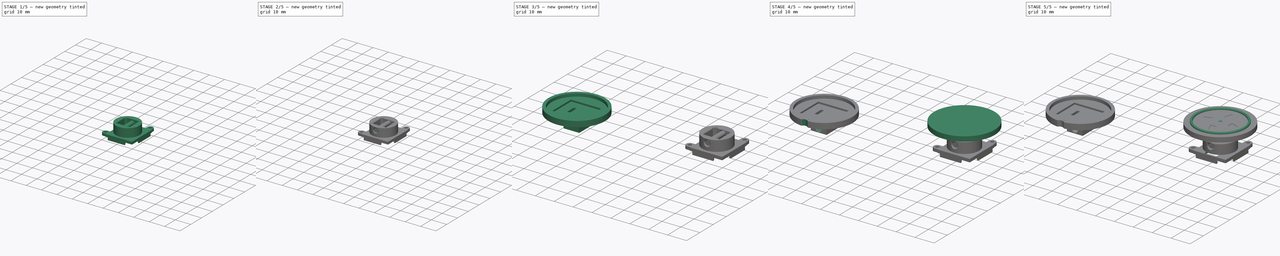
[diagram: build sequence overview — one tinted view per stage of 5, left to right]
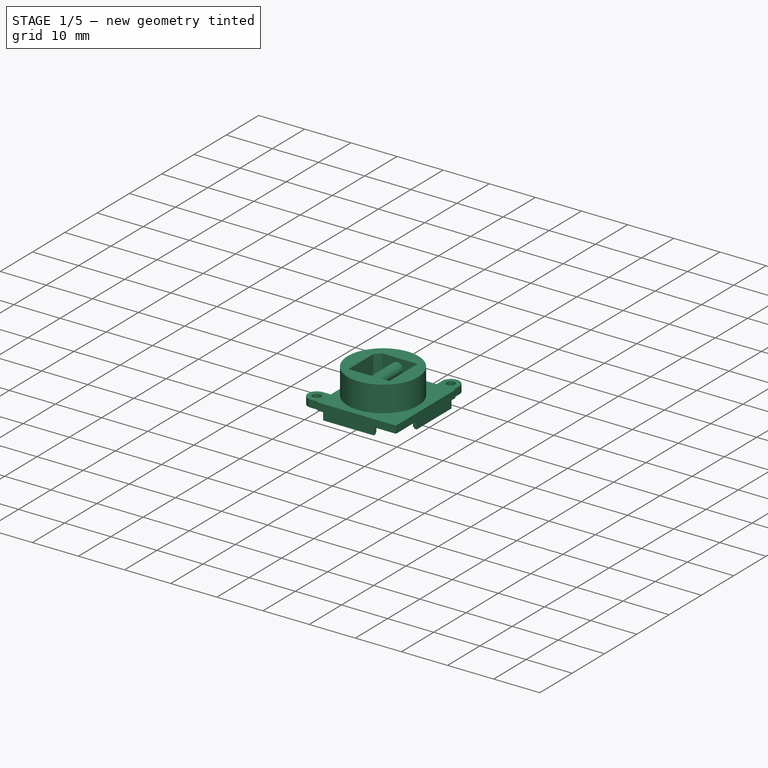
[diagram: stage 1 of 5 — iso view after this stage's code; geometry added in this stage tinted green]
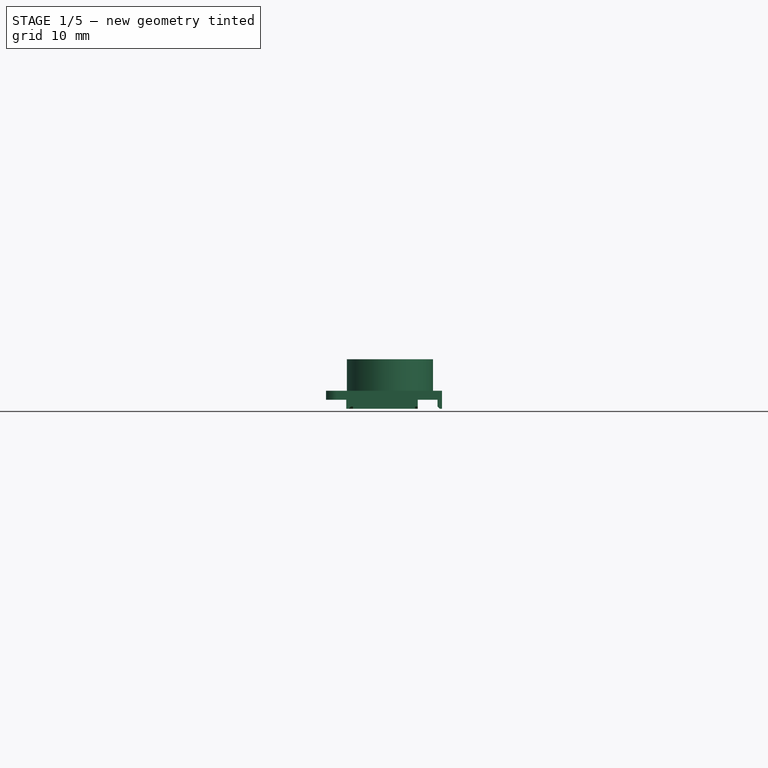
[diagram: stage 1 of 5 — front view after this stage's code; geometry added in this stage tinted green]
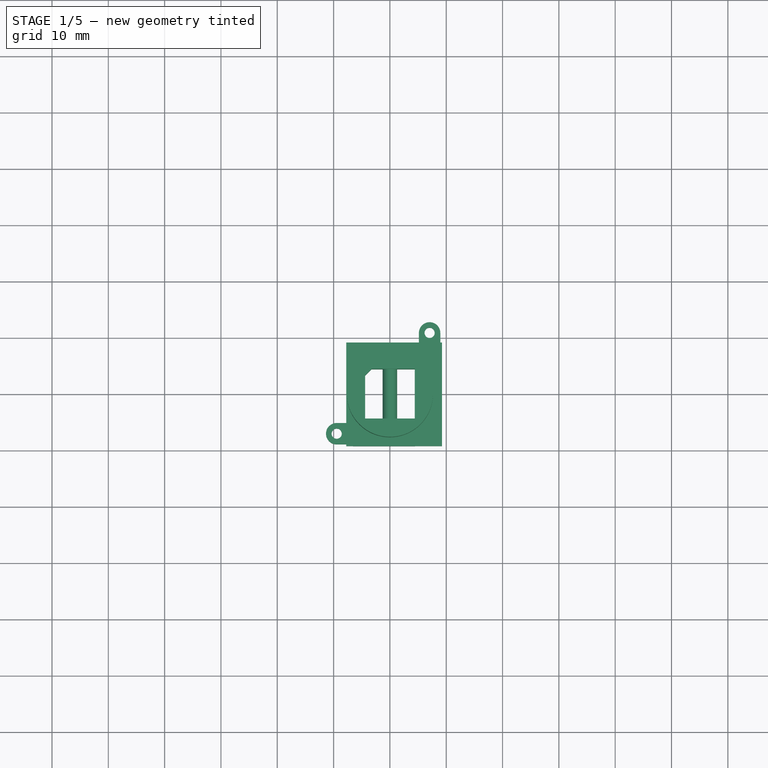
[diagram: stage 1 of 5 — top view after this stage's code; geometry added in this stage tinted green]
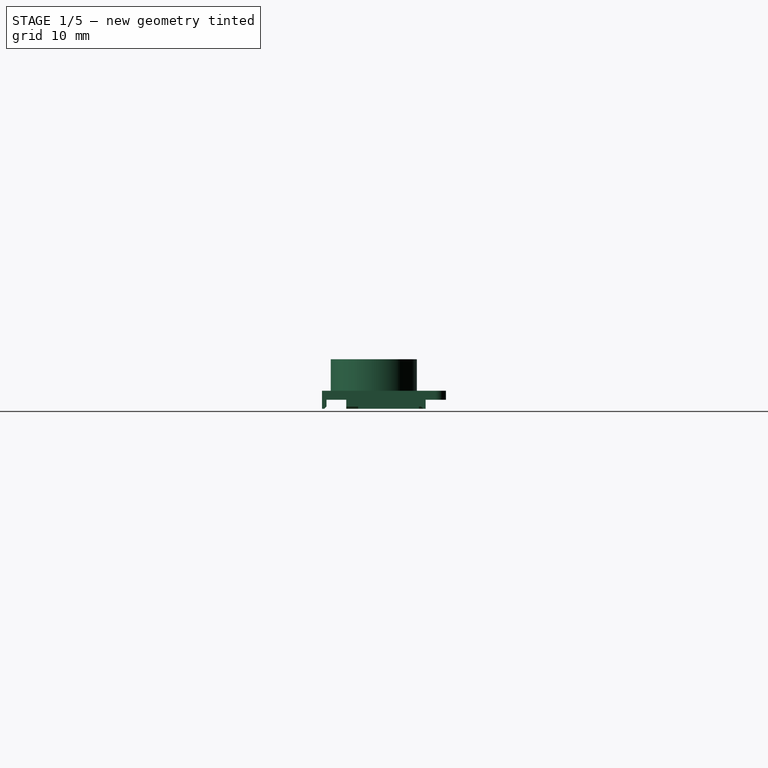
[diagram: stage 1 of 5 — right view after this stage's code; geometry added in this stage tinted green]
FCSTD DOCUMENT  (FreeCAD 0.18R4 (GitTag))
Label: Freude
License: All rights reserved
LicenseURL: http://en.wikipedia.org/wiki/All_rights_reserved
objects: Part::Feature×30, Sketcher::SketchObject×24, PartDesign::Pocket×12, App::Part×11, PartDesign::Pad×7, PartDesign::Chamfer×6, PartDesign::Body×4, PartDesign::Fillet×3, PartDesign::CoordinateSystem×2, Part::FeaturePython×1, PartDesign::ShapeBinder×1, PartDesign::PolarPattern×1, PartDesign::Revolution×1
note: 112 computed .brp shape members not serialized (recipe doc carries the construction recipe); baked Part::Feature solids carry a one-line shape summary decoded from their .brp

FEATURE [Part::FeaturePython] Point  # WARN: FeaturePython — macro-defined, semantics opaque (R4)
  X = 0
  Y = 0
  Z = 0
FEATURE [Sketcher::SketchObject] Sketch004
  AttachmentOffset = pos=(0,0,-11.4) rot=(0,0,1;0rad)
  MapMode = 5
  Placement = pos=(0,0,-11.4) rot=(0,0,1;0rad)
  Support = -> [XY_Plane010]
  sketch-geometry (42):
    g0: LineSegment [constr] StartX=-6.75 StartY=8.2 StartZ=0 EndX=4.85 EndY=8.2 EndZ=0
    g1: LineSegment [constr] StartX=8.25 StartY=8.2 StartZ=0 EndX=8.25 EndY=-8.2 EndZ=0
    g2: LineSegment [constr] StartX=8.25 StartY=-8.2 StartZ=0 EndX=-6.75 EndY=-8.2 EndZ=0
    g3: LineSegment [constr] StartX=-6.75 StartY=-8.2 StartZ=0 EndX=-6.75 EndY=-7.5 EndZ=0
    g4: LineSegment [constr] StartX=9.25 StartY=8.2 StartZ=0 EndX=8.25 EndY=8.2 EndZ=0
    g5: LineSegment [constr] StartX=-6.75 StartY=-6.5 StartZ=0 EndX=-6.75 EndY=8.2 EndZ=0
    g6: LineSegment [constr] StartX=-6.75 StartY=9.2 StartZ=0 EndX=-6.75 EndY=8.2 EndZ=0
    g7: LineSegment [constr] StartX=-7.75 StartY=8.2 StartZ=0 EndX=-6.75 EndY=8.2 EndZ=0
    g8: LineSegment [constr] StartX=-7.75 StartY=-8.2 StartZ=0 EndX=-6.75 EndY=-8.2 EndZ=0
    g9: LineSegment [constr] StartX=-6.75 StartY=-9.2 StartZ=0 EndX=-6.75 EndY=-8.2 EndZ=0
    g10: LineSegment [constr] StartX=8.25 StartY=-9.2 StartZ=0 EndX=8.25 EndY=-8.2 EndZ=0
    g11: LineSegment [constr] StartX=9.25 StartY=-8.2 StartZ=0 EndX=8.25 EndY=-8.2 EndZ=0
    g12: ArcOfCircle CenterX=7.05 CenterY=10.9 CenterZ=0 NormalX=0 NormalY=0 NormalZ=1 AngleXU=0 Radius=1.9 StartAngle=-1.8e-15 EndAngle=3.14159
    g13: LineSegment StartX=-7.75 StartY=9.2 StartZ=0 EndX=5.15 EndY=9.2 EndZ=0
    g14: LineSegment StartX=-7.75 StartY=-5.1 StartZ=0 EndX=-7.75 EndY=9.2 EndZ=0
    g15: LineSegment StartX=5.15 StartY=9.2 StartZ=0 EndX=5.15 EndY=10.9 EndZ=0
    g16: LineSegment StartX=9.25 StartY=9.2 StartZ=0 EndX=9.25 EndY=-9.2 EndZ=0
    g17: LineSegment StartX=9.25 StartY=-9.2 StartZ=0 EndX=-7.75 EndY=-9.2 EndZ=0
    g18: LineSegment [constr] StartX=8.25 StartY=8.2 StartZ=0 EndX=8.25 EndY=9.2 EndZ=0
    g19: LineSegment StartX=8.95 StartY=10.9 StartZ=0 EndX=8.95 EndY=9.2 EndZ=0
    g20: LineSegment StartX=8.95 StartY=9.2 StartZ=0 EndX=9.25 EndY=9.2 EndZ=0
    g21: ArcOfCircle CenterX=-9.45 CenterY=-7 CenterZ=0 NormalX=0 NormalY=0 NormalZ=1 AngleXU=0 Radius=1.9 StartAngle=1.5708 EndAngle=4.71239
    g22: LineSegment StartX=-9.45 StartY=-8.9 StartZ=0 EndX=-7.75 EndY=-8.9 EndZ=0
    g23: LineSegment StartX=-7.75 StartY=-8.9 StartZ=0 EndX=-7.75 EndY=-9.2 EndZ=0
    g24: LineSegment StartX=-9.45 StartY=-5.1 StartZ=0 EndX=-7.75 EndY=-5.1 EndZ=0
    g25: LineSegment [constr] StartX=8.25 StartY=9.2 StartZ=0 EndX=8.95 EndY=9.2 EndZ=0
    g26: LineSegment [constr] StartX=-7.75 StartY=-8.2 StartZ=0 EndX=-7.75 EndY=-8.9 EndZ=0
    g27: Circle CenterX=-9.45 CenterY=-7 CenterZ=0 NormalX=0 NormalY=0 NormalZ=1 AngleXU=0 Radius=0.9
    g28: LineSegment [constr] StartX=-6.75 StartY=-6.5 StartZ=0 EndX=-6.75 EndY=-7.5 EndZ=0
    g29: GeomPoint X=-6.75 Y=-7 Z=0
    g30: LineSegment [constr] StartX=-9.45 StartY=-7 StartZ=0 EndX=-6.75 EndY=-7 EndZ=0
    g31: LineSegment [constr] StartX=4.85 StartY=8.2 StartZ=0 EndX=9.25 EndY=8.2 EndZ=0
    g32: GeomPoint X=7.05 Y=8.2 Z=0
    g33: LineSegment [constr] StartX=7.05 StartY=8.2 StartZ=0 EndX=7.05 EndY=10.9 EndZ=0
    g34: Circle CenterX=7.05 CenterY=10.9 CenterZ=0 NormalX=0 NormalY=0 NormalZ=1 AngleXU=0 Radius=0.9
    g35: LineSegment [constr] StartX=5.15 StartY=9.2 StartZ=0 EndX=8.95 EndY=9.2 EndZ=0
    g36: LineSegment [constr] StartX=5.15 StartY=10.9 StartZ=0 EndX=8.95 EndY=10.9 EndZ=0
    g37: LineSegment [constr] StartX=5.15 StartY=10.9 StartZ=0 EndX=5.15 EndY=12.8 EndZ=0
    g38: LineSegment [constr] StartX=5.15 StartY=12.8 StartZ=0 EndX=8.95 EndY=12.8 EndZ=0
    g39: LineSegment [constr] StartX=-9.45 StartY=-5.1 StartZ=0 EndX=-9.45 EndY=-8.9 EndZ=0
    g40: LineSegment [constr] StartX=-9.45 StartY=-8.9 StartZ=0 EndX=-11.35 EndY=-8.9 EndZ=0
    g41: LineSegment [constr] StartX=-11.35 StartY=-5.1 StartZ=0 EndX=-11.35 EndY=-8.9 EndZ=0
  constraints (113):
    c: Coincident(g4,g1)
    c: Coincident(g1,g2)
    c: Coincident(g2,g3)
    c: Coincident(g5,g0)
    c: Horizontal(g0)
    c: Horizontal(g2)
    c: Vertical(g1)
    c: Vertical(g3)
    c: Tangent(g0,g4)
    c: Tangent(g3,g5)
    c: Coincident(g0,g6)
    c: Vertical(g6)
    c: Coincident(g7,g0)
    c: Horizontal(g7)
    c: Coincident(g8,g2)
    c: Horizontal(g8)
    c: Coincident(g9,g2)
    c: Vertical(g9)
    c: Coincident(g10,g11)
    c: Coincident(g10,g1)
    c: Vertical(g10)
    c: Horizontal(g11)
    c: Equal(g11,g10)
    c: Horizontal(g13)
    c: Coincident(g13,g14)
    c: Perpendicular(g14,g13)
    c: PointOnObject(g7,g14)
    c: PointOnObject(g6,g13)
    c: Vertical(g15)
    c: Coincident(g15,g12)
    c: Coincident(g15,g13)
    c: Vertical(g16)
    c: PointOnObject(g11,g16)
    c: Horizontal(g17)
    c: PointOnObject(g10,g17)
    c: Coincident(g16,g17)
    c: Coincident(g18,g1)
    c: Vertical(g18)
    c: Vertical(g19)
    c: Coincident(g19,g20)
    c: Coincident(g20,g16)
    c: Horizontal(g22)
    c: Coincident(g22,g23)
    c: Coincident(g23,g17)
    c: Horizontal(g24)
    c: Coincident(g14,g24)
    c: Coincident(g25,g18)
    c: Coincident(g19,g12)
    c: Coincident(g24,g21)
    c: Coincident(g22,g21)
    c: Vertical(g23)
    c: Coincident(g26,g8)
    c: Tangent(g23,g26)
    c: Radius(g27) = 0.9
    c: Coincident(g28,g3)
    c: Symmetric(g28,g28,g29)
    c: Coincident(g30,g29)
    c: Horizontal(g30)
    c: Coincident(g30,g27)
    c: Coincident(g31,g0)
    c: Symmetric(g31,g31,g32)
    c: Coincident(g33,g32)
    c: Vertical(g33)
    c: Equal(g33,g30)
    c: Coincident(g34,g33)
    c: Equal(g34,g27)
    c: DistanceY(g22,g14) = 3.8
    c: Coincident(g21,g27)
    c: Radius(g21) = 1.9
    c: Coincident(g35,g19)
    c: Coincident(g35,g13)
    c: Horizontal(g35)
    c: Coincident(g12,g33)
    c: Coincident(g36,g12)
    c: Coincident(g36,g12)
    c: Horizontal(g36)
    c: Coincident(g31,g4)
    c: PointOnObject(g12,g36)
    c: Equal(g7,g6)
    c: Equal(g9,g8)
    c: Equal(g6,g8)
    c: Coincident(g25,g19)
    c: PointOnObject(g18,g35)
    c: PointOnObject(g4,g16)
    c: Horizontal(g20)
    c: DistanceX(g13) = -7.75
    c: DistanceY(g13) = 9.2
    c: DistanceX(g16) = 9.25
    c: DistanceY(g16) = -9.2
    c: DistanceX(g20,g20) = 0.3
    c: DistanceX(g36,g36) = 3.8
    c: Coincident(g37,g12)
    c: Vertical(g37)
    c: Horizontal(g38)
    c: Coincident(g38,g37)
    c: Equal(g38,g36)
    c: Tangent(g38,g12)
    c: DistanceY(g13,g37) = 3.6
    c: PointOnObject(g9,g17)
    c: Distance(g7) = 1
    c: Coincident(g39,g21)
    c: PointOnObject(g21,g39)
    c: Coincident(g39,g21)
    c: Coincident(g40,g21)
    c: Perpendicular(g39,g40)
    c: Coincident(g41,g40)
    c: Vertical(g41)
    c: Equal(g41,g39)
    c: Tangent(g41,g21)
    c: Coincident(g28,g5)
    c: Equal(g23,g20)
    c: Coincident(g26,g22)
    c: Distance(g28) = 1
FEATURE [PartDesign::Pad] Pad  label="MainBody"
  Length = 3.2
  Length2 = 100
  Midplane = true
  Profile = -> Sketch004
  Type = 0
FEATURE [Sketcher::SketchObject] Sketch006
  AttachmentOffset = pos=(0,0,-11.4) rot=(0,0,1;0rad)
  MapMode = 5
  Placement = pos=(0,0,-11.4) rot=(0,0,1;0rad)
  Support = -> [XY_Plane010]
  sketch-geometry (60):
    g0: LineSegment [constr] StartX=-6.95 StartY=8.4 StartZ=0 EndX=8.45 EndY=8.4 EndZ=0
    g1: LineSegment StartX=8.45 StartY=8 StartZ=0 EndX=8.45 EndY=-2.8 EndZ=0
    g2: LineSegment [constr] StartX=-6.95 StartY=-8.4 StartZ=0 EndX=-6.95 EndY=8.4 EndZ=0
    g3: LineSegment [constr] StartX=-6.95 StartY=9.2 StartZ=0 EndX=-6.95 EndY=8.4 EndZ=0
    g4: LineSegment [constr] StartX=-7.75 StartY=8.4 StartZ=0 EndX=-6.95 EndY=8.4 EndZ=0
    g5: LineSegment [constr] StartX=-9.65 StartY=-8.9 StartZ=0 EndX=-9.65 EndY=-5.1 EndZ=0
    g6: LineSegment [constr] StartX=8.45 StartY=-9.2 StartZ=0 EndX=8.45 EndY=-8.4 EndZ=0
    g7: LineSegment [constr] StartX=9.25 StartY=-8.4 StartZ=0 EndX=8.45 EndY=-8.4 EndZ=0
    g8: ArcOfCircle CenterX=7.05 CenterY=11.1 CenterZ=0 NormalX=0 NormalY=0 NormalZ=1 AngleXU=0 Radius=1.9 StartAngle=1.1e-15 EndAngle=3.14159
    g9: LineSegment [constr] StartX=-7.75 StartY=9.2 StartZ=0 EndX=5.15 EndY=9.2 EndZ=0
    g10: LineSegment [constr] StartX=-7.75 StartY=-5.1 StartZ=0 EndX=-7.75 EndY=9.2 EndZ=0
    g11: LineSegment StartX=5.15 StartY=9.2 StartZ=0 EndX=5.15 EndY=11.1 EndZ=0
    g12: LineSegment [constr] StartX=9.25 StartY=9.2 StartZ=0 EndX=9.25 EndY=-9.2 EndZ=0
    g13: LineSegment [constr] StartX=9.25 StartY=-9.2 StartZ=0 EndX=-7.75 EndY=-9.2 EndZ=0
    g14: LineSegment StartX=8.95 StartY=11.1 StartZ=0 EndX=8.95 EndY=9.2 EndZ=0
    g15: LineSegment [constr] StartX=8.95 StartY=9.2 StartZ=0 EndX=9.25 EndY=9.2 EndZ=0
    g16: ArcOfCircle CenterX=-9.65 CenterY=-7 CenterZ=0 NormalX=0 NormalY=0 NormalZ=1 AngleXU=0 Radius=1.9 StartAngle=1.5708 EndAngle=4.71239
    g17: LineSegment StartX=-9.65 StartY=-8.9 StartZ=0 EndX=-7.75 EndY=-8.9 EndZ=0
    g18: LineSegment [constr] StartX=-7.75 StartY=-8.9 StartZ=0 EndX=-7.75 EndY=-9.2 EndZ=0
    g19: LineSegment StartX=-9.65 StartY=-5.1 StartZ=0 EndX=-7.75 EndY=-5.1 EndZ=0
    g20: Circle [constr] CenterX=-9.65 CenterY=-7 CenterZ=0 NormalX=0 NormalY=0 NormalZ=1 AngleXU=0 Radius=0.9
    g21: Circle [constr] CenterX=7.05 CenterY=11.1 CenterZ=0 NormalX=0 NormalY=0 NormalZ=1 AngleXU=0 Radius=0.9
    g22: LineSegment [constr] StartX=-7.75 StartY=-5.1 StartZ=0 EndX=-7.75 EndY=-8.9 EndZ=0
    g23: LineSegment [constr] StartX=-11.55 StartY=-5.1 StartZ=0 EndX=-11.55 EndY=-8.9 EndZ=0
    g24: LineSegment [constr] StartX=-11.55 StartY=-8.9 StartZ=0 EndX=-9.65 EndY=-8.9 EndZ=0
    g25: LineSegment [constr] StartX=5.15 StartY=11.1 StartZ=0 EndX=8.95 EndY=11.1 EndZ=0
    g26: LineSegment [constr] StartX=5.15 StartY=9.2 StartZ=0 EndX=8.95 EndY=9.2 EndZ=0
    g27: LineSegment [constr] StartX=5.15 StartY=13 StartZ=0 EndX=8.95 EndY=13 EndZ=0
    g28: LineSegment [constr] StartX=5.15 StartY=13 StartZ=0 EndX=5.15 EndY=11.1 EndZ=0
    g29: LineSegment StartX=-6.55 StartY=-8.4 StartZ=0 EndX=4.45 EndY=-8.4 EndZ=0
    g30: LineSegment [constr] StartX=8.45 StartY=8.4 StartZ=0 EndX=8.45 EndY=9.2 EndZ=0
    g31: LineSegment [constr] StartX=8.45 StartY=9.2 StartZ=0 EndX=8.95 EndY=9.2 EndZ=0
    g32: LineSegment [constr] StartX=5.15 StartY=9.2 StartZ=0 EndX=5.15 EndY=8.4 EndZ=0
    g33: LineSegment StartX=4.95 StartY=8.4 StartZ=0 EndX=-6.95 EndY=8.4 EndZ=0
    g34: LineSegment [constr] StartX=-7.75 StartY=-5.1 StartZ=0 EndX=-6.95 EndY=-5.1 EndZ=0
    g35: LineSegment [constr] StartX=-7.75 StartY=-8.4 StartZ=0 EndX=-6.95 EndY=-8.4 EndZ=0
    g36: LineSegment [constr] StartX=-7.75 StartY=-8.4 StartZ=0 EndX=-7.75 EndY=-8.9 EndZ=0
    g37: LineSegment StartX=-6.95 StartY=8.4 StartZ=0 EndX=-6.95 EndY=-4.9 EndZ=0
    g38: LineSegment [constr] StartX=-7.75 StartY=-8.9 StartZ=0 EndX=-6.55 EndY=-8.9 EndZ=0
    g39: LineSegment StartX=-6.55 StartY=-8.4 StartZ=0 EndX=-6.55 EndY=-8.9 EndZ=0
    g40: LineSegment [constr] StartX=-6.95 StartY=-8.4 StartZ=0 EndX=-6.55 EndY=-8.4 EndZ=0
    g41: LineSegment [constr] StartX=8.95 StartY=9.2 StartZ=0 EndX=8.95 EndY=8 EndZ=0
    g42: LineSegment StartX=8.95 StartY=8 StartZ=0 EndX=8.45 EndY=8 EndZ=0
    g43: LineSegment [constr] StartX=8.45 StartY=8.4 StartZ=0 EndX=8.45 EndY=8 EndZ=0
    g44: LineSegment StartX=4.45 StartY=-8.4 StartZ=0 EndX=4.45 EndY=-11 EndZ=0
    g45: LineSegment StartX=4.45 StartY=-11 StartZ=0 EndX=11.05 EndY=-11 EndZ=0
    g46: LineSegment StartX=11.05 StartY=-11 StartZ=0 EndX=11.05 EndY=-2.8 EndZ=0
    g47: LineSegment StartX=11.05 StartY=-2.8 StartZ=0 EndX=8.45 EndY=-2.8 EndZ=0
    g48: LineSegment [constr] StartX=4.45 StartY=-8.4 StartZ=0 EndX=8.45 EndY=-8.4 EndZ=0
    g49: LineSegment [constr] StartX=8.45 StartY=-2.8 StartZ=0 EndX=8.45 EndY=-8.4 EndZ=0
    g50: LineSegment StartX=-7.75 StartY=-4.9 StartZ=0 EndX=-7.75 EndY=-5.1 EndZ=0
    g51: LineSegment StartX=4.95 StartY=9.2 StartZ=0 EndX=4.95 EndY=8.4 EndZ=0
    g52: LineSegment StartX=4.95 StartY=9.2 StartZ=0 EndX=5.15 EndY=9.2 EndZ=0
    g53: LineSegment StartX=-7.75 StartY=-4.9 StartZ=0 EndX=-6.95 EndY=-4.9 EndZ=0
    g54: LineSegment StartX=8.95 StartY=8 StartZ=0 EndX=9.25 EndY=8 EndZ=0
    g55: LineSegment StartX=9.25 StartY=8 StartZ=0 EndX=9.25 EndY=9.2 EndZ=0
    g56: LineSegment StartX=8.95 StartY=9.2 StartZ=0 EndX=9.25 EndY=9.2 EndZ=0
    g57: LineSegment StartX=-6.55 StartY=-8.9 StartZ=0 EndX=-6.55 EndY=-9.2 EndZ=0
    g58: LineSegment StartX=-6.55 StartY=-9.2 StartZ=0 EndX=-7.75 EndY=-9.2 EndZ=0
    g59: LineSegment StartX=-7.75 StartY=-9.2 StartZ=0 EndX=-7.75 EndY=-8.9 EndZ=0
  constraints (165):
    c: Coincident(g2,g0)
    c: Vertical(g1)
    c: Coincident(g0,g3)
    c: Vertical(g3)
    c: Coincident(g4,g0)
    c: Horizontal(g4)
    c: Vertical(g5)
    c: Coincident(g6,g7)
    c: Vertical(g6)
    c: Horizontal(g7)
    c: Horizontal(g9)
    c: Coincident(g9,g10)
    c: Perpendicular(g10,g9)
    c: PointOnObject(g3,g9)
    c: Vertical(g11)
    c: Coincident(g11,g8)
    c: Coincident(g11,g9)
    c: Vertical(g12)
    c: PointOnObject(g7,g12)
    c: Horizontal(g13)
    c: PointOnObject(g6,g13)
    c: Coincident(g12,g13)
    c: Coincident(g14,g15)
    c: Coincident(g15,g12)
    c: Coincident(g16,g5)
    c: Horizontal(g17)
    c: Coincident(g17,g18)
    c: Coincident(g18,g13)
    c: Horizontal(g19)
    c: Coincident(g10,g19)
    c: Coincident(g14,g8)
    c: Coincident(g19,g16)
    c: Coincident(g17,g16)
    c: Vertical(g18)
    c: Radius(g20) = 0.9
    c: DistanceX(g9) = -7.75
    c: DistanceY(g9) = 9.2
    c: DistanceX(g12) = 9.25
    c: DistanceY(g12) = -9.2
    c: Equal(g3,g4)
    c: Equal(g4,g7)
    c: Equal(g7,g6)
    c: Distance(g3) = 0.8
    c: Vertical(g2)
    c: Coincident(g22,g10)
    c: Coincident(g22,g17)
    c: Vertical(g22)
    c: Coincident(g16,g20)
    c: Coincident(g5,g16)
    c: PointOnObject(g16,g5)
    c: DistanceY(g18,g18) = 0.3
    c: Coincident(g16,g24)
    c: Coincident(g24,g23)
    c: Horizontal(g24)
    c: Vertical(g23)
    c: Tangent(g16,g23)
    c: Equal(g23,g22)
    c: DistanceY(g22,g22) = 3.8
    c: DistanceX(g23,g17) = 3.8
    c: Distance(g15) = 0.3
    c: Coincident(g25,g8)
    c: Coincident(g25,g8)
    c: Horizontal(g25)
    c: Horizontal(g26)
    c: Horizontal(g27)
    c: Coincident(g26,g14)
    c: Coincident(g26,g9)
    c: Coincident(g28,g8)
    c: Coincident(g28,g27)
    c: Vertical(g28)
    c: Equal(g27,g25)
    c: Equal(g25,g26)
    c: Tangent(g27,g8)
    c: Coincident(g8,g21)
    c: PointOnObject(g8,g25)
    c: DistanceX(g26,g26) = 3.8
    c: DistanceY(g9,g27) = 3.8
    c: Horizontal(g29)
    c: PointOnObject(g30,g26)
    c: Coincident(g30,g0)
    c: Vertical(g30)
    c: Coincident(g31,g30)
    c: Coincident(g31,g14)
    c: Coincident(g32,g11)
    c: PointOnObject(g32,g0)
    c: Coincident(g33,g2)
    c: Vertical(g32)
    c: Coincident(g34,g19)
    c: PointOnObject(g34,g2)
    c: Horizontal(g34)
    c: Coincident(g35,g2)
    c: Coincident(g35,g36)
    c: Coincident(g36,g17)
    c: Coincident(g37,g33)
    c: Perpendicular(g35,g36)
    c: Horizontal(g35)
    c: Horizontal(g33)
    c: Horizontal(g15)
    c: Equal(g21,g20)
    c: Coincident(g38,g39)
    c: Coincident(g38,g17)
    c: Horizontal(g38)
    c: Vertical(g39)
    c: Coincident(g29,g39)
    c: Coincident(g40,g29)
    c: Coincident(g40,g2)
    c: Distance(g38) = 1.2
    c: Horizontal(g40)
    c: Coincident(g41,g14)
    c: Vertical(g41)
    c: Equal(g41,g38)
    c: Coincident(g42,g41)
    c: Horizontal(g42)
    c: Coincident(g1,g42)
    c: Coincident(g43,g0)
    c: Coincident(g43,g1)
    c: Vertical(g43)
    c: Coincident(g46,g45)
    c: Coincident(g46,g47)
    c: Coincident(g45,g44)
    c: Horizontal(g47)
    c: Vertical(g46)
    c: Horizontal(g45)
    c: Vertical(g44)
    c: Coincident(g29,g44)
    c: Coincident(g1,g47)
    c: Vertical(g49)
    c: Horizontal(g48)
    c: Coincident(g29,g48)
    c: Coincident(g48,g6)
    c: Coincident(g49,g6)
    c: Coincident(g49,g1)
    c: Distance(g44) = 2.6
    c: Equal(g44,g47)
    c: Distance(g29) = 11
    c: Distance(g1) = 10.8
    c: PointOnObject(g50,g10)
    c: Distance(g50,g19) = 0.2
    c: Coincident(g50,g19)
    c: PointOnObject(g51,g9)
    c: Vertical(g51)
    c: Coincident(g52,g11)
    c: Coincident(g52,g51)
    c: Coincident(g33,g51)
    c: Horizontal(g0)
    c: Distance(g33,g32) = 0.2
    c: PointOnObject(g4,g10)
    c: Coincident(g53,g50)
    c: Horizontal(g53)
    c: PointOnObject(g53,g2)
    c: Coincident(g37,g53)
    c: Coincident(g54,g42)
    c: PointOnObject(g54,g12)
    c: Horizontal(g54)
    c: Coincident(g54,g55)
    c: Coincident(g55,g12)
    c: Coincident(g56,g55)
    c: Coincident(g56,g14)
    c: Coincident(g57,g39)
    c: PointOnObject(g57,g13)
    c: Vertical(g57)
    c: Coincident(g58,g57)
    c: Coincident(g58,g13)
    c: Coincident(g59,g58)
    c: Coincident(g59,g17)
FEATURE [Sketcher::SketchObject] Sketch007
  MapMode = 5
  Placement = pos=(0,0,-11.4) rot=(0,0,1;0rad)
  sketch-geometry (33):
    g0: LineSegment [constr] StartX=-6.98 StartY=-8.8 StartZ=0 EndX=5.75 EndY=-8.8 EndZ=0
    g1: LineSegment [constr] StartX=5.75 StartY=-8.8 StartZ=0 EndX=5.75 EndY=5.2 EndZ=0
    g2: LineSegment [constr] StartX=5.75 StartY=5.2 StartZ=0 EndX=-5 EndY=5.2 EndZ=0
    g3: LineSegment [constr] StartX=-6.98 StartY=-4.7 StartZ=0 EndX=-6.98 EndY=-8.8 EndZ=0
    g4: LineSegment [constr] StartX=-8.75 StartY=-10.2 StartZ=0 EndX=10.25 EndY=-10.2 EndZ=0
    g5: LineSegment [constr] StartX=10.25 StartY=-10.2 StartZ=0 EndX=10.25 EndY=10.2 EndZ=0
    g6: LineSegment [constr] StartX=10.25 StartY=10.2 StartZ=0 EndX=-8.75 EndY=10.2 EndZ=0
    g7: LineSegment [constr] StartX=-8.75 StartY=10.2 StartZ=0 EndX=-8.75 EndY=-10.2 EndZ=0
    g8: GeomPoint X=0.75 Y=-10.2 Z=0
    g9: LineSegment [constr] StartX=0.75 StartY=-8.8 StartZ=0 EndX=0.75 EndY=-10.2 EndZ=0
    g10: GeomPoint X=10.25 Y=4e-16 Z=0
    g11: LineSegment [constr] StartX=5.75 StartY=4e-16 StartZ=0 EndX=10.25 EndY=4e-16 EndZ=0
    g12: GeomPoint X=-8.78 Y=-4.7 Z=0
    g13: LineSegment [constr] StartX=-8.78 StartY=-4.7 StartZ=0 EndX=-6.98 EndY=-4.7 EndZ=0
    g14: GeomPoint X=0.75 Y=10.2 Z=0
    g15: LineSegment [constr] StartX=0.75 StartY=10.2 StartZ=0 EndX=0.75 EndY=5.2 EndZ=0
    g16: LineSegment [constr] StartX=-3 StartY=3.15 StartZ=0 EndX=3 EndY=3.15 EndZ=0
    g17: LineSegment [constr] StartX=3 StartY=3.15 StartZ=0 EndX=3 EndY=-3.15 EndZ=0
    g18: LineSegment [constr] StartX=3 StartY=-3.15 StartZ=0 EndX=-3 EndY=-3.15 EndZ=0
    g19: LineSegment [constr] StartX=-3 StartY=-3.15 StartZ=0 EndX=-3 EndY=3.15 EndZ=0
    g20: LineSegment [constr] StartX=0 StartY=5.15 StartZ=0 EndX=0 EndY=3.15 EndZ=0
    g21: LineSegment [constr] StartX=-5 StartY=0 StartZ=0 EndX=-3 EndY=0 EndZ=0
    g22: LineSegment [constr] StartX=5 StartY=0 StartZ=0 EndX=3 EndY=0 EndZ=0
    g23: LineSegment [constr] StartX=0 StartY=-3.15 StartZ=0 EndX=0 EndY=-5.15 EndZ=0
    g24: LineSegment StartX=-5 StartY=5.15 StartZ=0 EndX=5 EndY=5.15 EndZ=0
    g25: LineSegment StartX=5 StartY=5.15 StartZ=0 EndX=5 EndY=-5.15 EndZ=0
    g26: LineSegment StartX=5 StartY=-5.15 StartZ=0 EndX=-5 EndY=-5.15 EndZ=0
    g27: LineSegment StartX=-5 StartY=-5.15 StartZ=0 EndX=-5 EndY=5.15 EndZ=0
    g28: LineSegment [constr] StartX=-6.98 StartY=-3.11 StartZ=0 EndX=-5 EndY=-3.11 EndZ=0
    g29: LineSegment StartX=-5 StartY=-3.11 StartZ=0 EndX=-5 EndY=5.2 EndZ=0
    g30: LineSegment [constr] StartX=-6.98 StartY=-3.11 StartZ=0 EndX=-6.98 EndY=-4.7 EndZ=0
    g31: LineSegment [constr] StartX=0 StartY=30 StartZ=0 EndX=0 EndY=-30 EndZ=0
    g32: LineSegment [constr] StartX=-30 StartY=0 StartZ=0 EndX=30 EndY=0 EndZ=0
  constraints (93):
    c: Coincident(g0,g1)
    c: Coincident(g1,g2)
    c: Coincident(g3,g0)
    c: Horizontal(g0)
    c: Horizontal(g2)
    c: Vertical(g1)
    c: Vertical(g3)
    c: Coincident(g4,g5)
    c: Coincident(g5,g6)
    c: Coincident(g6,g7)
    c: Coincident(g7,g4)
    c: Horizontal(g4)
    c: Horizontal(g6)
    c: Vertical(g5)
    c: Vertical(g7)
    c: DistanceX(g5) = 10.25
    c: DistanceY(g5) = 10.2
    c: DistanceX(g4) = -8.75
    c: DistanceY(g4) = -10.2
    c: Symmetric(g4,g4,g8)
    c: Coincident(g9,g8)
    c: Vertical(g9)
    c: DistanceY(g9,g9) = 1.4
    c: PointOnObject(g9,g0)
    c: Symmetric(g5,g5,g10)
    c: Coincident(g11,g10)
    c: Horizontal(g11)
    c: PointOnObject(g11,g1)
    c: DistanceX(g11,g11) = 4.5
    c: Coincident(g13,g12)
    c: Horizontal(g13)
    c: Symmetric(g6,g6,g14)
    c: Coincident(g15,g14)
    c: PointOnObject(g15,g2)
    c: Vertical(g15)
    c: DistanceY(g15,g15) = 5
    c: Coincident(g16,g17)
    c: Coincident(g17,g18)
    c: Coincident(g18,g19)
    c: Coincident(g19,g16)
    c: Horizontal(g16)
    c: Horizontal(g18)
    c: Vertical(g17)
    c: Vertical(g19)
    c: DistanceX(g17) = 3
    c: DistanceY(g17) = -3.15
    c: DistanceX(g16) = -3
    c: DistanceY(g16) = 3.15
    c: PointOnObject(g20,g16)
    c: Vertical(g20)
    c: PointOnObject(g21,g19)
    c: Horizontal(g21)
    c: Equal(g21,g20)
    c: PointOnObject(g22,g17)
    c: Equal(g22,g20)
    c: PointOnObject(g23,g18)
    c: Equal(g23,g22)
    c: Distance(g20) = 2
    c: Coincident(g24,g25)
    c: Coincident(g25,g26)
    c: Coincident(g26,g27)
    c: Coincident(g27,g24)
    c: Horizontal(g24)
    c: Horizontal(g26)
    c: Vertical(g25)
    c: Vertical(g27)
    c: PointOnObject(g22,g25)
    c: PointOnObject(g20,g24)
    c: PointOnObject(g21,g27)
    c: PointOnObject(g23,g26)
    c: PointOnObject(g28,g27)
    c: PointOnObject(g28,g3)
    c: Horizontal(g28)
    c: Vertical(g29)
    c: Coincident(g29,g28)
    c: Coincident(g3,g13)
    c: Coincident(g2,g29)
    c: Coincident(g30,g3)
    c: Coincident(g30,g28)
    c: Distance(g13) = 1.8
    c: Distance(g28) = 1.98
    c: DistanceX(g31) = 0
    c: DistanceY(g31) = -30
    c: DistanceY(g31) = 30
    c: DistanceX(g32) = 30
    c: DistanceY(g32) = 0
    c: DistanceX(g32) = -30
    c: Tangent(g22,g32)
    c: Tangent(g23,g31)
    c: Tangent(g21,g32)
    c: Tangent(g20,g31)
    c: Distance(g28,g4) = 7.09
    c: Distance(g3,g4) = 5.5
FEATURE [PartDesign::Pocket] Pocket001  label="ButtonThrough"
  BaseFeature = -> Pad
  Length = 5
  Length2 = 100
  Midplane = true
  Profile = -> Sketch007
  Type = 1
FEATURE [PartDesign::Pocket] Pocket  label="PCBShell"
  BaseFeature = -> Pocket001
  Length = 1.6
  Length2 = 100
  Profile = -> Sketch006
  Type = 0
FEATURE [Sketcher::SketchObject] Sketch008
  MapMode = 5
  Placement = pos=(0,0,-9.8) rot=(0,0,1;0rad)
  Support = -> [Pocket001]
  sketch-geometry (13):
    g0: Circle CenterX=0 CenterY=0 CenterZ=0 NormalX=0 NormalY=0 NormalZ=1 AngleXU=0 Radius=7.65
    g1: LineSegment [constr] StartX=-7.65 StartY=0 StartZ=0 EndX=-4.4 EndY=0 EndZ=0
    g2: LineSegment [constr] StartX=4.4 StartY=4.4 StartZ=0 EndX=-4.4 EndY=4.4 EndZ=0
    g3: LineSegment [constr] StartX=-4.4 StartY=4.4 StartZ=0 EndX=-4.4 EndY=-4.4 EndZ=0
    g4: LineSegment [constr] StartX=-4.4 StartY=-4.4 StartZ=0 EndX=4.4 EndY=-4.4 EndZ=0
    g5: LineSegment [constr] StartX=4.4 StartY=-4.4 StartZ=0 EndX=4.4 EndY=4.4 EndZ=0
    g6: Circle [constr] CenterX=0 CenterY=0 CenterZ=0 NormalX=0 NormalY=0 NormalZ=1 AngleXU=0 Radius=6.22254
    g7: LineSegment StartX=-4.4 StartY=3.25449 StartZ=0 EndX=-3.25449 EndY=4.4 EndZ=0
    g8: LineSegment [constr] StartX=-4.4 StartY=4.4 StartZ=0 EndX=-3.82724 EndY=3.82724 EndZ=0
    g9: LineSegment StartX=-3.25449 StartY=4.4 StartZ=0 EndX=4.4 EndY=4.4 EndZ=0
    g10: LineSegment StartX=-4.4 StartY=3.25449 StartZ=0 EndX=-4.4 EndY=-4.4 EndZ=0
    g11: LineSegment StartX=-4.4 StartY=-4.4 StartZ=0 EndX=4.4 EndY=-4.4 EndZ=0
    g12: LineSegment StartX=4.4 StartY=4.4 StartZ=0 EndX=4.4 EndY=-4.4 EndZ=0
  constraints (35):
    c: DistanceX(g0) = 0
    c: DistanceY(g0) = 0
    c: Radius(g0) = 7.65
    c: PointOnObject(g1,g0)
    c: Distance(g1) = 3.25
    c: Tangent(g1,g-1)
    c: Coincident(g2,g3)
    c: Coincident(g3,g4)
    c: Coincident(g4,g5)
    c: Coincident(g5,g2)
    c: Equal(g2,g3)
    c: Equal(g2,g4)
    c: Equal(g2,g5)
    c: PointOnObject(g2,g6)
    c: PointOnObject(g3,g6)
    c: PointOnObject(g4,g6)
    c: PointOnObject(g5,g6)
    c: Coincident(g6,g0)
    c: PointOnObject(g1,g3)
    c: Horizontal(g2)
    c: PointOnObject(g7,g2)
    c: PointOnObject(g7,g3)
    c: Coincident(g8,g2)
    c: PointOnObject(g8,g7)
    c: Perpendicular(g7,g8)
    c: Angle(g3,g8) = 0.785398
    c: Distance(g8) = 0.81
    c: Coincident(g9,g7)
    c: Coincident(g9,g2)
    c: Coincident(g10,g7)
    c: Coincident(g10,g3)
    c: Coincident(g4,g11)
    c: Coincident(g11,g10)
    c: Coincident(g12,g9)
    c: Coincident(g12,g11)
FEATURE [Sketcher::SketchObject] Sketch009  label="NubMateFeature"
  MapMode = 5
  Placement = pos=(0,0,0) rot=(0.57735,0.57735,0.57735;2.0944rad)
  Support = -> [YZ_Plane010]
  sketch-geometry (8):
    g0: LineSegment StartX=-4.4 StartY=-7.5 StartZ=0 EndX=-4.4 EndY=-5.5 EndZ=0
    g1: LineSegment StartX=-4.4 StartY=-5.5 StartZ=0 EndX=-5.65 EndY=-5.5 EndZ=0
    g2: LineSegment StartX=-5.65 StartY=-7.5 StartZ=0 EndX=-4.4 EndY=-7.5 EndZ=0
    g3: GeomPoint X=-4.4 Y=-6.5 Z=0
    g4: LineSegment [constr] StartX=-6.15 StartY=-6.5 StartZ=0 EndX=-4.4 EndY=-6.5 EndZ=0
    g5: LineSegment StartX=-6.15 StartY=-6 StartZ=0 EndX=-6.15 EndY=-7 EndZ=0
    g6: ArcOfCircle CenterX=-5.65 CenterY=-6 CenterZ=0 NormalX=0 NormalY=0 NormalZ=1 AngleXU=0 Radius=0.5 StartAngle=1.5708 EndAngle=3.14159
    g7: ArcOfCircle CenterX=-5.65 CenterY=-7 CenterZ=0 NormalX=0 NormalY=0 NormalZ=1 AngleXU=0 Radius=0.5 StartAngle=3.14159 EndAngle=4.71239
  constraints (20):
    c: DistanceX(g0) = -4.4
    c: DistanceY(g0) = -7.5
    c: Vertical(g0)
    c: DistanceY(g0,g0) = 2
    c: Coincident(g1,g0)
    c: Horizontal(g1)
    c: Coincident(g2,g0)
    c: Parallel(g2,g1)
    c: Equal(g1,g2)
    c: Symmetric(g0,g0,g3)
    c: Coincident(g4,g3)
    c: Horizontal(g4)
    c: Vertical(g5)
    c: PointOnObject(g4,g5)
    c: Tangent(g1,g6) = -1.5708
    c: Tangent(g5,g6) = -1.5708
    c: Tangent(g2,g7) = -1.5708
    c: Tangent(g5,g7) = -1.5708
    c: Radius(g6) = 0.5
    c: DistanceX(g1,g1) = 1.25
FEATURE [Sketcher::SketchObject] Sketch010
  AttachmentOffset = pos=(0,0,-7) rot=(0,0,1;0rad)
  MapMode = 5
  Placement = pos=(0,0,-12) rot=(0,0,1;0rad)
  sketch-geometry (36):
    g0: LineSegment StartX=-6.98 StartY=-8.8 StartZ=0 EndX=5.75 EndY=-8.8 EndZ=0
    g1: LineSegment [constr] StartX=5.75 StartY=-8.8 StartZ=0 EndX=5.75 EndY=5.2 EndZ=0
    g2: LineSegment [constr] StartX=5.75 StartY=5.2 StartZ=0 EndX=-5 EndY=5.2 EndZ=0
    g3: LineSegment StartX=-6.98 StartY=-4.7 StartZ=0 EndX=-6.98 EndY=-8.8 EndZ=0
    g4: LineSegment [constr] StartX=-8.75 StartY=-10.2 StartZ=0 EndX=10.25 EndY=-10.2 EndZ=0
    g5: LineSegment [constr] StartX=10.25 StartY=-10.2 StartZ=0 EndX=10.25 EndY=10.2 EndZ=0
    g6: LineSegment [constr] StartX=10.25 StartY=10.2 StartZ=0 EndX=-8.75 EndY=10.2 EndZ=0
    g7: LineSegment [constr] StartX=-8.75 StartY=10.2 StartZ=0 EndX=-8.75 EndY=-10.2 EndZ=0
    g8: GeomPoint X=0.75 Y=-10.2 Z=0
    g9: LineSegment [constr] StartX=0.75 StartY=-8.8 StartZ=0 EndX=0.75 EndY=-10.2 EndZ=0
    g10: GeomPoint X=10.25 Y=0 Z=0
    g11: LineSegment [constr] StartX=5.75 StartY=0 StartZ=0 EndX=10.25 EndY=0 EndZ=0
    g12: GeomPoint X=-8.78 Y=-4.7 Z=0
    g13: LineSegment [constr] StartX=-8.78 StartY=-4.7 StartZ=0 EndX=-6.98 EndY=-4.7 EndZ=0
    g14: GeomPoint X=0.75 Y=10.2 Z=0
    g15: LineSegment [constr] StartX=0.75 StartY=10.2 StartZ=0 EndX=0.75 EndY=5.2 EndZ=0
    g16: LineSegment [constr] StartX=-3 StartY=3.15 StartZ=0 EndX=3 EndY=3.15 EndZ=0
    g17: LineSegment [constr] StartX=3 StartY=3.15 StartZ=0 EndX=3 EndY=-3.15 EndZ=0
    g18: LineSegment [constr] StartX=3 StartY=-3.15 StartZ=0 EndX=-3 EndY=-3.15 EndZ=0
    g19: LineSegment [constr] StartX=-3 StartY=-3.15 StartZ=0 EndX=-3 EndY=3.15 EndZ=0
    g20: LineSegment [constr] StartX=0 StartY=5.15 StartZ=0 EndX=0 EndY=3.15 EndZ=0
    g21: LineSegment [constr] StartX=-5 StartY=0 StartZ=0 EndX=-3 EndY=0 EndZ=0
    g22: LineSegment [constr] StartX=5 StartY=0 StartZ=0 EndX=3 EndY=0 EndZ=0
    g23: LineSegment [constr] StartX=0 StartY=-3.15 StartZ=0 EndX=0 EndY=-5.15 EndZ=0
    g24: LineSegment [constr] StartX=-5 StartY=5.15 StartZ=0 EndX=5 EndY=5.15 EndZ=0
    g25: LineSegment [constr] StartX=5 StartY=5.15 StartZ=0 EndX=5 EndY=-5.15 EndZ=0
    g26: LineSegment [constr] StartX=5 StartY=-5.15 StartZ=0 EndX=-5 EndY=-5.15 EndZ=0
    g27: LineSegment [constr] StartX=-5 StartY=-5.15 StartZ=0 EndX=-5 EndY=5.15 EndZ=0
    g28: LineSegment StartX=-6.98 StartY=-3.11 StartZ=0 EndX=-5 EndY=-3.11 EndZ=0
    g29: LineSegment [constr] StartX=-5 StartY=-3.11 StartZ=0 EndX=-5 EndY=5.2 EndZ=0
    g30: LineSegment StartX=-6.98 StartY=-3.11 StartZ=0 EndX=-6.98 EndY=-4.7 EndZ=0
    g31: LineSegment [constr] StartX=0 StartY=30 StartZ=0 EndX=0 EndY=-30 EndZ=0
    g32: LineSegment [constr] StartX=-30 StartY=0 StartZ=0 EndX=30 EndY=0 EndZ=0
    g33: LineSegment StartX=-5 StartY=-5.15 StartZ=0 EndX=5.75 EndY=-5.15 EndZ=0
    g34: LineSegment StartX=-5 StartY=-3.11 StartZ=0 EndX=-5 EndY=-5.15 EndZ=0
    g35: LineSegment StartX=5.75 StartY=-5.15 StartZ=0 EndX=5.75 EndY=-8.8 EndZ=0
  constraints (100):
    c: Coincident(g0,g1)
    c: Coincident(g1,g2)
    c: Coincident(g3,g0)
    c: Horizontal(g0)
    c: Horizontal(g2)
    c: Vertical(g1)
    c: Vertical(g3)
    c: Coincident(g4,g5)
    c: Coincident(g5,g6)
    c: Coincident(g6,g7)
    c: Coincident(g7,g4)
    c: Horizontal(g4)
    c: Horizontal(g6)
    c: Vertical(g5)
    c: Vertical(g7)
    c: DistanceX(g5) = 10.25
    c: DistanceY(g5) = 10.2
    c: DistanceX(g4) = -8.75
    c: DistanceY(g4) = -10.2
    c: Symmetric(g4,g4,g8)
    c: Coincident(g9,g8)
    c: Vertical(g9)
    c: DistanceY(g9,g9) = 1.4
    c: PointOnObject(g9,g0)
    c: Symmetric(g5,g5,g10)
    c: Coincident(g11,g10)
    c: Horizontal(g11)
    c: PointOnObject(g11,g1)
    c: DistanceX(g11,g11) = 4.5
    c: Coincident(g13,g12)
    c: Horizontal(g13)
    c: Symmetric(g6,g6,g14)
    c: Coincident(g15,g14)
    c: PointOnObject(g15,g2)
    c: Vertical(g15)
    c: DistanceY(g15,g15) = 5
    c: Coincident(g16,g17)
    c: Coincident(g17,g18)
    c: Coincident(g18,g19)
    c: Coincident(g19,g16)
    c: Horizontal(g16)
    c: Horizontal(g18)
    c: Vertical(g17)
    c: Vertical(g19)
    c: DistanceX(g17) = 3
    c: DistanceY(g17) = -3.15
    c: DistanceX(g16) = -3
    c: DistanceY(g16) = 3.15
    c: PointOnObject(g20,g16)
    c: Vertical(g20)
    c: PointOnObject(g21,g19)
    c: Horizontal(g21)
    c: Equal(g21,g20)
    c: PointOnObject(g22,g17)
    c: Equal(g22,g20)
    c: PointOnObject(g23,g18)
    c: Equal(g23,g22)
    c: Distance(g20) = 2
    c: Coincident(g24,g25)
    c: Coincident(g25,g26)
    c: Coincident(g26,g27)
    c: Coincident(g27,g24)
    c: Horizontal(g24)
    c: Horizontal(g26)
    c: Vertical(g25)
    c: Vertical(g27)
    c: PointOnObject(g22,g25)
    c: PointOnObject(g20,g24)
    c: PointOnObject(g21,g27)
    c: PointOnObject(g23,g26)
    c: PointOnObject(g28,g27)
    c: PointOnObject(g28,g3)
    c: Horizontal(g28)
    c: Vertical(g29)
    c: Coincident(g29,g28)
    c: Coincident(g3,g13)
    c: Coincident(g2,g29)
    c: Coincident(g30,g3)
    c: Coincident(g30,g28)
    c: Distance(g13) = 1.8
    c: Distance(g28) = 1.98
    c: DistanceX(g31) = 0
    c: DistanceY(g31) = -30
    c: DistanceY(g31) = 30
    c: DistanceX(g32) = 30
    c: DistanceY(g32) = 0
    c: DistanceX(g32) = -30
    c: Tangent(g22,g32)
    c: Tangent(g23,g31)
    c: Tangent(g21,g32)
    c: Tangent(g20,g31)
    c: Distance(g28,g4) = 7.09
    c: Distance(g3,g4) = 5.5
    c: PointOnObject(g33,g1)
    c: Coincident(g34,g28)
    c: Coincident(g34,g33)
    c: Vertical(g34)
    c: Tangent(g33,g26)
    c: Coincident(g35,g33)
    c: Coincident(g35,g0)
FEATURE [Sketcher::SketchObject] Sketch
  MapMode = 5
  Placement = pos=(0,-4.4,0) rot=(0,0.707107,0.707107;3.14159rad)
  sketch-geometry (1):
    g0: LineSegment StartX=-2.8 StartY=-6.5 StartZ=0 EndX=2.8 EndY=-6.5 EndZ=0
  constraints (4):
    c: DistanceX(g0) = -2.8
    c: DistanceY(g0) = -6.5
    c: DistanceX(g0) = 2.8
    c: DistanceY(g0) = -6.5
FEATURE [PartDesign::Chamfer] Chamfer001  label="Chamfer_PCBShell"
  Base = -> Pocket [Edge70,Edge68,Edge92,Edge87]
  BaseFeature = -> Pocket
  Size = 0.4
FEATURE [PartDesign::Pad] Pad001  label="Stem"
  BaseFeature = -> Chamfer001
  Length = 5.6
  Length2 = 100
  Profile = -> Sketch008
  Type = 0
FEATURE [PartDesign::Body] Body
  Group = -> [Sketch004,Pad,Sketch006,Sketch007,Pocket001,Pocket,Chamfer001,Sketch008,Pad001,Chamfer,Sketch009,Sketch010,Sketch,Pocket016,Chamfer002,Chamfer003,Chamfer004,Chamfer005,Pocket002,Pocket003,Fillet001,Sketch029]
  Origin = -> Origin010
  Tip = -> Chamfer005
FEATURE [App::Part] Part  label="Bottom_Housing"
  Group = -> [Body,CopySketch011]
  Origin = -> Origin009
FEATURE [Sketcher::SketchObject] Sketch030  label="PinDiameter"
  MapMode = 5
  Placement = pos=(0,0,0) rot=(1,0,0;1.5708rad)
  Support = -> [XZ_Plane022]
  sketch-geometry (1):
    g0: Circle CenterX=0 CenterY=-6.3 CenterZ=0 NormalX=0 NormalY=0 NormalZ=1 AngleXU=0 Radius=1.29
  constraints (3):
    c: DistanceX(g0) = 0
    c: DistanceY(g0) = -6.3
    c: Radius(g0) = 1.29
FEATURE [PartDesign::Pad] Pad007
  Length = 14
  Length2 = 100
  Midplane = true
  Placement = pos=(0,0,0) rot=(1,0,0;1.5708rad)
  Profile = -> Sketch030
  Type = 0
FEATURE [PartDesign::Body] Body003  label="Pin001"
  Group = -> [Sketch030,Pad007]
  Origin = -> Origin022
  Tip = -> Pad007
FEATURE [App::Part] Part001  label="Pin"
  Group = -> [Body003]
  Origin = -> Origin021
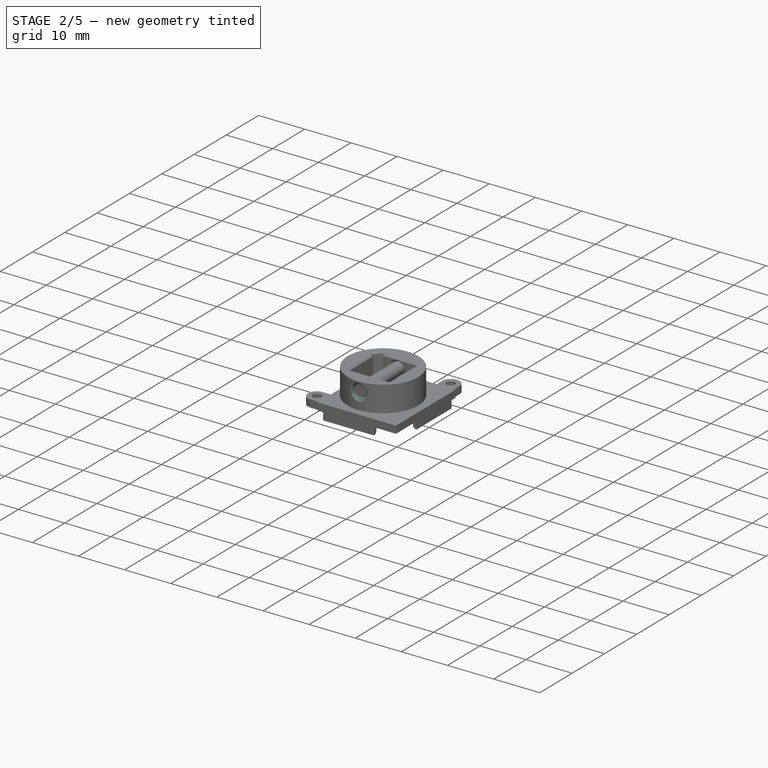
[diagram: stage 2 of 5 — iso view after this stage's code; geometry added in this stage tinted green]
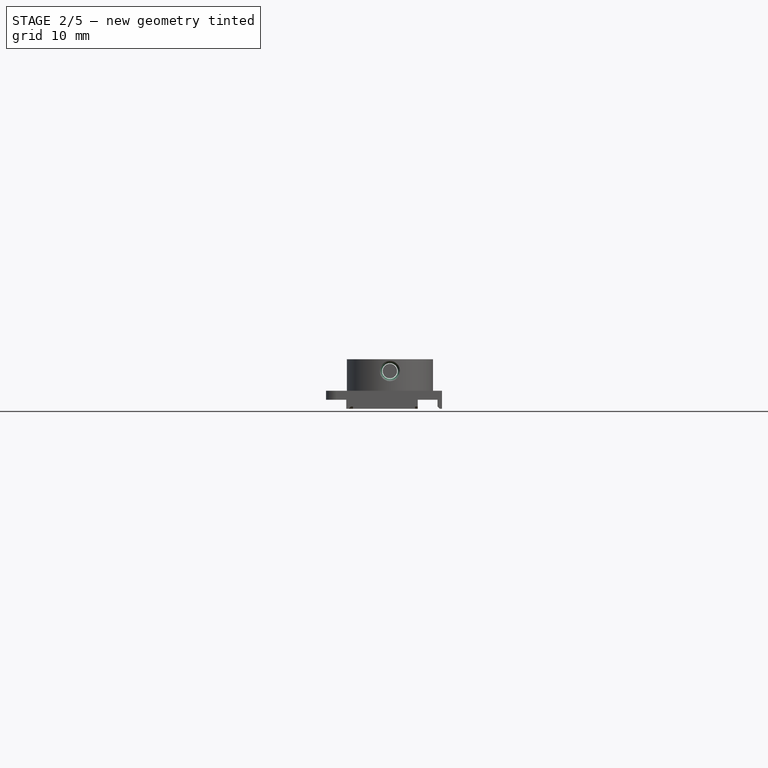
[diagram: stage 2 of 5 — front view after this stage's code; geometry added in this stage tinted green]
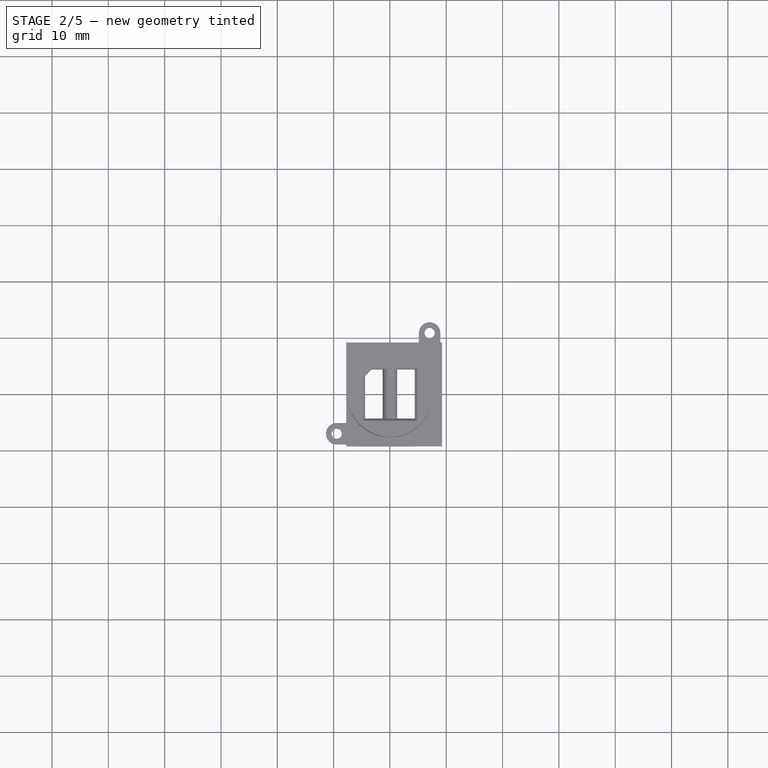
[diagram: stage 2 of 5 — top view after this stage's code; geometry added in this stage tinted green]
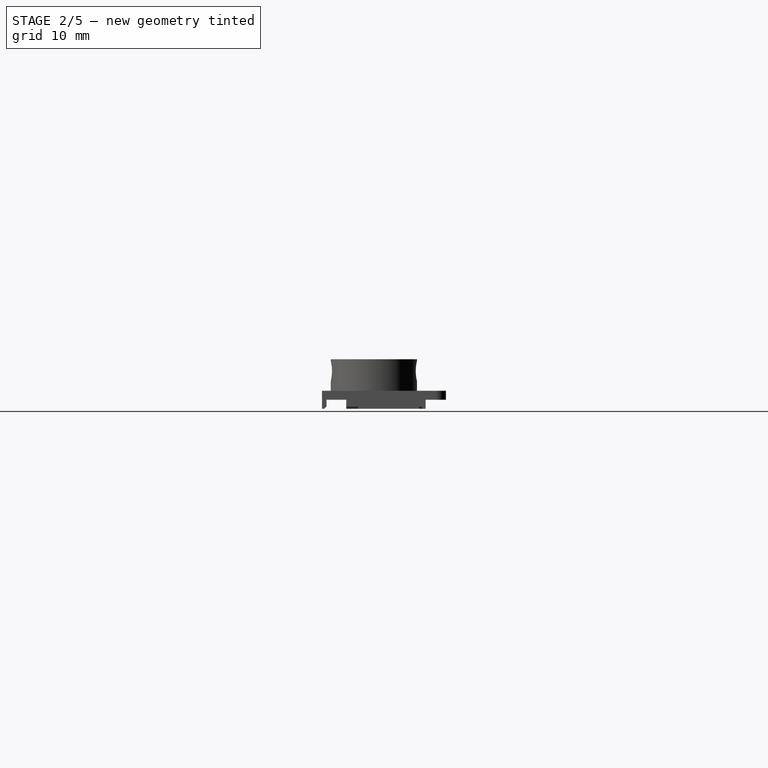
[diagram: stage 2 of 5 — right view after this stage's code; geometry added in this stage tinted green]
FEATURE [PartDesign::Chamfer] Chamfer  label="Chamfer_StemInner"
  Base = -> Pad001 [Edge128,Edge125,Edge127,Edge123]
  BaseFeature = -> Pad001
  Size = 0.4
FEATURE [PartDesign::Body] Body001  label="Top_Housing"
  Group = -> [ShapeBinder,Pad002,Sketch011,Sketch012,Pocket004,Sketch013,Pocket005,Sketch014,Pad003,Sketch015,Pad004,Sketch016,Pocket006,Sketch025,Pocket013,Sketch028,Pocket015,Fillet,Fillet002]
  Origin = -> Origin016
  Placement = pos=(60,20,1.6) rot=(0,0,1;0rad)
  Tip = -> Fillet002
FEATURE [Sketcher::SketchObject] Sketch029
  MapMode = 5
  Placement = pos=(0,0,0) rot=(1,0,0;1.5708rad)
  Support = -> [XZ_Plane010]
  sketch-geometry (6):
    g0: LineSegment [constr] StartX=-4.15 StartY=-8.4 StartZ=0 EndX=4.15 EndY=-8.4 EndZ=0
    g1: Circle [constr] CenterX=3e-16 CenterY=-6.3 CenterZ=0 NormalX=0 NormalY=0 NormalZ=1 AngleXU=0 Radius=1.29
    g2: LineSegment [constr] StartX=3e-16 StartY=-8.4 StartZ=0 EndX=3e-16 EndY=-6.3 EndZ=0
    g3: LineSegment [constr] StartX=3e-16 StartY=-6.3 StartZ=0 EndX=3e-16 EndY=-5.01 EndZ=0
    g4: LineSegment [constr] StartX=3e-16 StartY=-4.91 StartZ=0 EndX=3e-16 EndY=-5.01 EndZ=0
    g5: Circle CenterX=3e-16 CenterY=-6.3 CenterZ=0 NormalX=0 NormalY=0 NormalZ=1 AngleXU=0 Radius=1.39
  constraints (17):
    c: Horizontal(g0)
    c: DistanceX(g0) = 4.15
    c: DistanceY(g0) = -8.4
    c: DistanceX(g0,g0) = 8.3
    c: Vertical(g2)
    c: Symmetric(g0,g0,g2)
    c: Coincident(g2,g1)
    c: DistanceY(g2,g2) = 2.1
    c: Radius(g1) = 1.29
    c: Coincident(g3,g1)
    c: Vertical(g3)
    c: PointOnObject(g3,g1)
    c: Vertical(g4)
    c: Coincident(g4,g3)
    c: DistanceY(g4,g4) = 0.1
    c: Coincident(g5,g1)
    c: PointOnObject(g4,g5)
FEATURE [PartDesign::Pocket] Pocket016  label="PinHole"
  BaseFeature = -> Chamfer
  Length = 5
  Length2 = 100
  Midplane = true
  Profile = -> Sketch029
  Type = 1
FEATURE [PartDesign::Chamfer] Chamfer002  label="PinHoleEntryChamfer01"
  Base = -> Pocket016 [Edge44]
  BaseFeature = -> Pocket016
  Size = 0.4
FEATURE [PartDesign::Chamfer] Chamfer003  label="PinHoleEntryChamfer02"
  Base = -> Chamfer002 [Edge32]
  BaseFeature = -> Chamfer002
  Size = 0.3
FEATURE [PartDesign::Chamfer] Chamfer004  label="PinHoleEntryChamfer03"
  Base = -> Chamfer003 [Edge51]
  BaseFeature = -> Chamfer003
  Size = 0.3
FEATURE [PartDesign::Chamfer] Chamfer005  label="PinHoleEntryChamfer04"
  Base = -> Chamfer004 [Edge3]
  BaseFeature = -> Chamfer004
  Size = 0.4
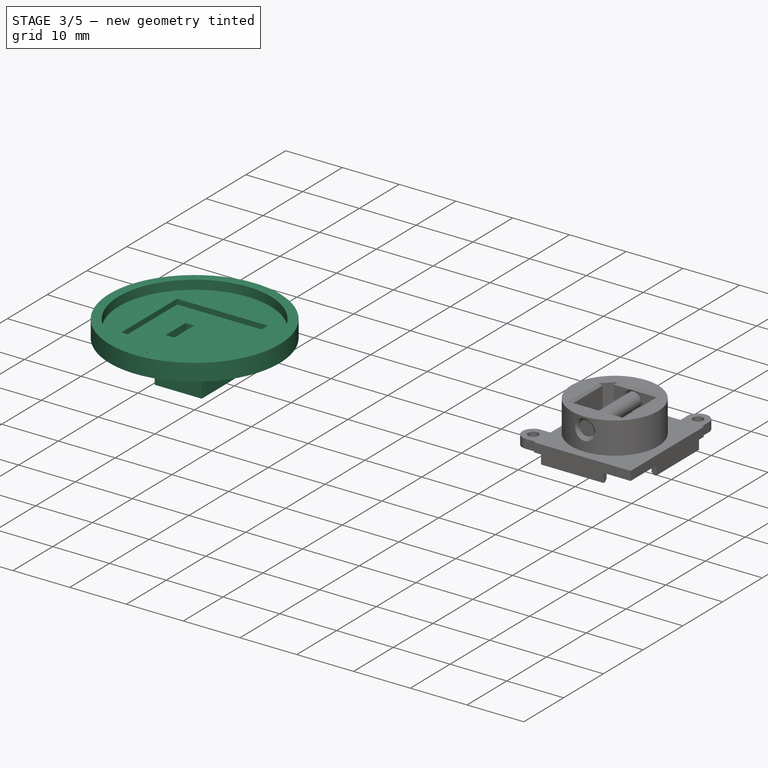
[diagram: stage 3 of 5 — iso view after this stage's code; geometry added in this stage tinted green]
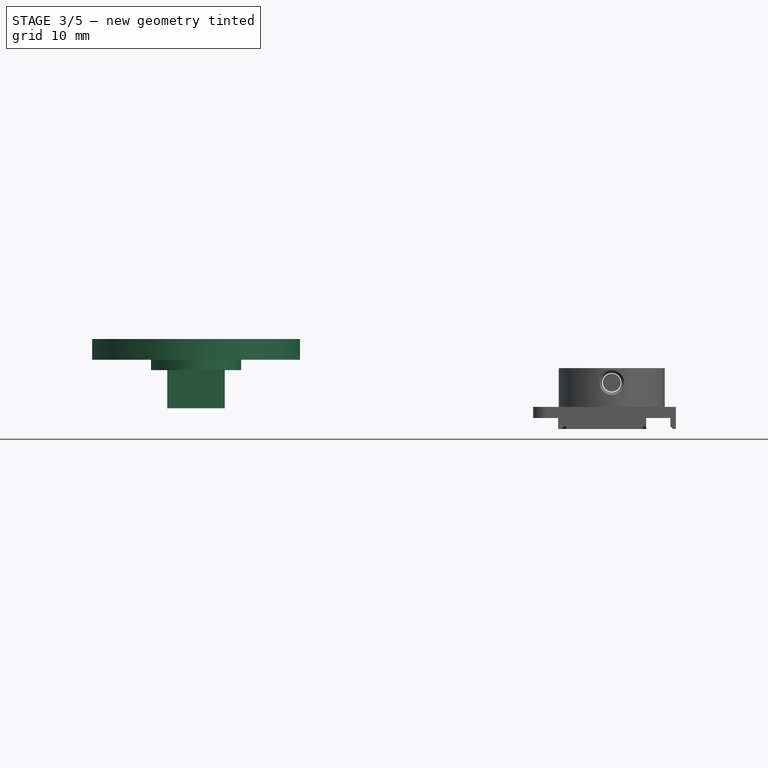
[diagram: stage 3 of 5 — front view after this stage's code; geometry added in this stage tinted green]
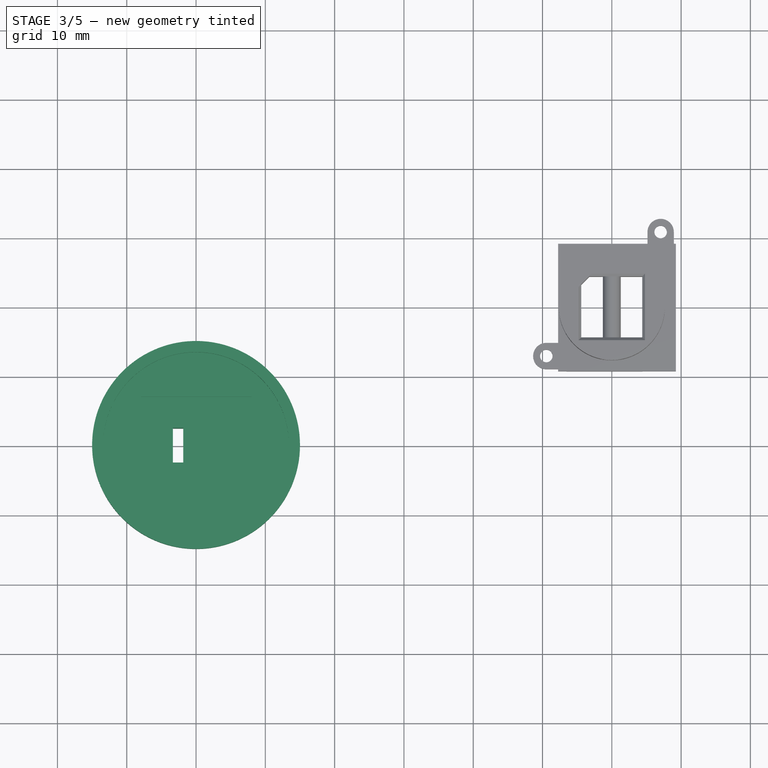
[diagram: stage 3 of 5 — top view after this stage's code; geometry added in this stage tinted green]
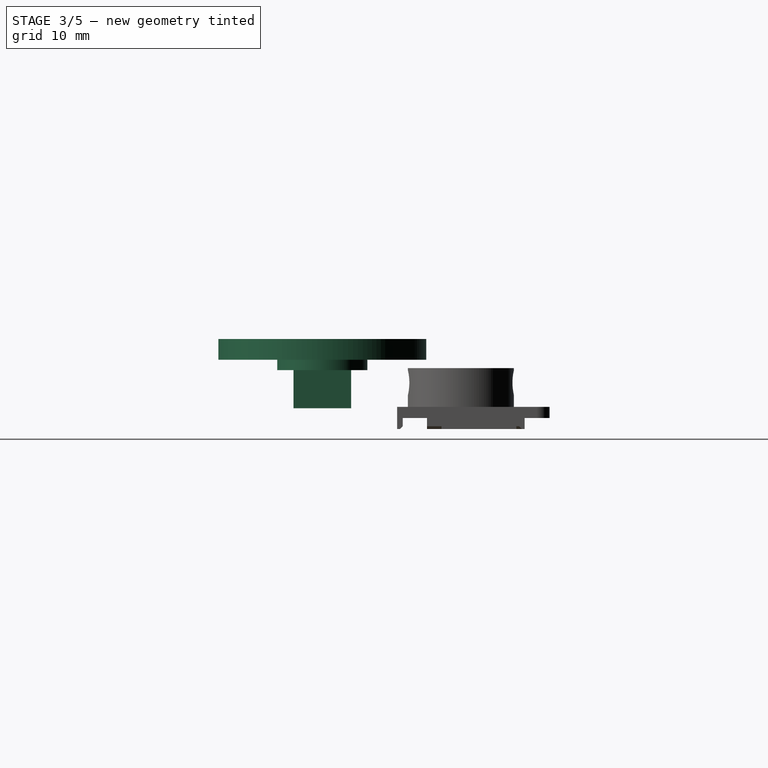
[diagram: stage 3 of 5 — right view after this stage's code; geometry added in this stage tinted green]
FEATURE [PartDesign::CoordinateSystem] Local_CS_57ef
  AttacherType = Attacher::AttachEngine3D
FEATURE [Part::Feature] Pcb_57ef
  Placement = pos=(-160,80,0) rot=(0,0,1;0rad)
  shape: bbox 20.3 x 21.7 x 1.6 mm, 16 faces (baked)
FEATURE [Sketcher::SketchObject] PCB_Sketch_57ef
  sketch-geometry (12):
    g0: LineSegment StartX=32.475 StartY=8.375 StartZ=0 EndX=31.775 EndY=8.375 EndZ=0
    g1: LineSegment StartX=47.475 StartY=-8.025 StartZ=0 EndX=47.475 EndY=-8.725 EndZ=0
    g2: LineSegment StartX=32.475 StartY=8.375 StartZ=0 EndX=32.475 EndY=-8.025 EndZ=0
    g3: LineSegment StartX=31.775 StartY=8.375 StartZ=0 EndX=31.775 EndY=11.075 EndZ=0
    g4: LineSegment StartX=35.575 StartY=8.375 StartZ=0 EndX=35.575 EndY=11.075 EndZ=0
    g5: LineSegment StartX=47.475 StartY=8.375 StartZ=0 EndX=35.575 EndY=8.375 EndZ=0
    g6: LineSegment StartX=47.475 StartY=-4.925 StartZ=0 EndX=47.475 EndY=8.375 EndZ=0
    g7: LineSegment StartX=47.475 StartY=-4.925 StartZ=0 EndX=50.175 EndY=-4.925 EndZ=0
    g8: LineSegment StartX=47.475 StartY=-8.725 StartZ=0 EndX=50.175 EndY=-8.725 EndZ=0
    g9: LineSegment StartX=32.475 StartY=-8.025 StartZ=0 EndX=47.475 EndY=-8.025 EndZ=0
    g10: ArcOfCircle CenterX=33.675 CenterY=11.075 CenterZ=0 NormalX=0 NormalY=0 NormalZ=1 AngleXU=0 Radius=1.9 StartAngle=0 EndAngle=3.14159
    g11: ArcOfCircle CenterX=50.175 CenterY=-6.825 CenterZ=0 NormalX=0 NormalY=0 NormalZ=1 AngleXU=0 Radius=1.9 StartAngle=4.71239 EndAngle=7.85398
  constraints (12):
    c: Coincident(g0,g3)
    c: Coincident(g3,g10)
    c: Coincident(g2,g9)
    c: Coincident(g0,g2)
    c: Coincident(g4,g5)
    c: Coincident(g4,g10)
    c: Coincident(g1,g8)
    c: Coincident(g1,g9)
    c: Coincident(g6,g7)
    c: Coincident(g5,g6)
    c: Coincident(g8,g11)
    c: Coincident(g7,g11)
FEATURE [App::Part] Board_Geoms_57ef
  Group = -> [Local_CS_57ef,Pcb_57ef,PCB_Sketch_57ef]
  Origin = -> Origin011
FEATURE [Part::Feature] Shape009  label="Y1_Crystal_SMD_5032_5F37B9DD"
  Placement = pos=(45.39,-3.81,0) rot=(0,0,-1;1.5708rad)
  shape: bbox 3.2 x 5 x 1.1 mm, 10 faces (baked)
FEATURE [Part::Feature] Shape010  label="C8_R_0402_1005Metric_5F2C5172"
  Placement = pos=(42.79,-2.11,0) rot=(0,0,1;1.5708rad)
  shape: bbox 0.5 x 1 x 0.35 mm, 26 faces (baked)
FEATURE [Part::Feature] Shape011  label="C12_R_0402_1005Metric_5F2C4FBF"
  Placement = pos=(37.04,6.05,0) rot=(0,0,1;1.5708rad)
  shape: bbox 0.5 x 1 x 0.35 mm, 26 faces (baked)
FEATURE [Part::Feature] Shape012  label="C15_R_0402_1005Metric_5F2C54B4"
  Placement = pos=(41.25,0.925,0) rot=(0,0,1;3.14159rad)
  shape: bbox 1 x 0.5 x 0.35 mm, 26 faces (baked)
FEATURE [Part::Feature] Shape013  label="R3_R_0402_1005Metric_5F2C5424"
  Placement = pos=(43.125,0.725,0) rot=(0,0,1;3.14159rad)
  shape: bbox 1 x 0.5 x 0.35 mm, 26 faces (baked)
FEATURE [Part::Feature] Shape014  label="L1_R_0402_1005Metric_5F2C5295"
  Placement = pos=(44.825,0.725,0) rot=(0,0,1;3.14159rad)
  shape: bbox 1 x 0.5 x 0.35 mm, 26 faces (baked)
FEATURE [Part::Feature] Shape015  label="C7_R_0402_1005Metric_5F2C52C5"
  Placement = pos=(45.29,-7.28,0) rot=(0,0,1;3.14159rad)
  shape: bbox 1 x 0.5 x 0.35 mm, 26 faces (baked)
FEATURE [Part::Feature] Shape016  label="R4_R_0402_1005Metric_5F2C5454"
  Placement = pos=(44.8,-0.425,0) rot=(0,0,1;3.14159rad)
  shape: bbox 1 x 0.5 x 0.35 mm, 26 faces (baked)
FEATURE [Part::Feature] Shape017  label="C9_R_0402_1005Metric_5F2C51E4"
  Placement = pos=(43.125,-0.425,0) rot=(0,0,1;0rad)
  shape: bbox 1 x 0.5 x 0.35 mm, 26 faces (baked)
FEATURE [Part::Feature] Shape018  label="R6_R_0402_1005Metric_5F2C5484"
  Placement = pos=(42.92,-4.07,0) rot=(0,0,-1;1.5708rad)
  shape: bbox 0.5 x 1 x 0.35 mm, 26 faces (baked)
FEATURE [Part::Feature] Shape019  label="C10_R_0402_1005Metric_5F2C50D9"
  Placement = pos=(42.95,-5.92,0) rot=(0,0,-1;1.5708rad)
  shape: bbox 0.5 x 1 x 0.35 mm, 26 faces (baked)
FEATURE [Part::Feature] Shape020  label="C6_R_0402_1005Metric_5F2C52F5"
  Placement = pos=(46.53,-0.41,0) rot=(0,0,1;3.14159rad)
  shape: bbox 1 x 0.5 x 0.35 mm, 26 faces (baked)
FEATURE [Part::Feature] Shape021  label="C11_R_0402_1005Metric_5F2C50A9"
  Placement = pos=(34.9,-0.475,0) rot=(0,0,1;1.5708rad)
  shape: bbox 0.5 x 1 x 0.35 mm, 26 faces (baked)
FEATURE [Part::Feature] Shape022  label="J3_5034800600_5F2C4F09[2]"
  Placement = pos=(41.7,-5.6,-1.6) rot=(-0.57735,0.57735,-0.57735;2.0944rad)
  shape: bbox 3.6 x 4.7 x 1.896 mm, 337 faces (baked)
FEATURE [Part::Feature] Shape023  label="SW1_B3FS_1000_5F2C4F48[2]"
  Placement = pos=(40.725,0.175,-1.6) rot=(0,0.707107,-0.707107;3.14159rad)
  shape: bbox 8 x 6.3 x 3.1 mm, 49 faces, 2 solids (baked)
FEATURE [App::Part] Bot_57ef
  Group = -> [Shape022,Shape023]
  Origin = -> Origin015
FEATURE [Part::Feature] Shape024  label="J4_5034800600_5F37B28E"
  Placement = pos=(31.6,-6.15,0) rot=(0.57735,-0.57735,-0.57735;2.0944rad)
  shape: bbox 3.6 x 4.7 x 1.896 mm, 337 faces (baked)
FEATURE [Part::Feature] Shape025  label="D1_LED_0402_1005Metric_5F2C5218"
  Placement = pos=(37.5,1.275,0) rot=(0,0,1;0rad)
  shape: bbox 1 x 0.5 x 0.5 mm, 50 faces (baked)
FEATURE [Part::Feature] Shape026  label="J2_1_5F2C51A8[2]"
  Placement = pos=(32.7,6.05,0) rot=(0.57735,-0.57735,-0.57735;2.0944rad)
  shape: bbox 3.601 x 4.201 x 1.896 mm, 306 faces (baked)
FEATURE [Part::Feature] Shape027  label="U2_QFN-32-1EP_5x5mm_Pitch0.5mm_5F2C501D"
  Placement = pos=(38.85,-2.675,0) rot=(0,0,1;3.14159rad)
  shape: bbox 5 x 5 x 0.77 mm, 206 faces (baked)
FEATURE [App::Part] Top_57ef
  Group = -> [Shape009,Shape010,Shape011,Shape012,Shape013,Shape014,Shape015,Shape016,Shape017,Shape018,Shape019,Shape020,Shape021,Shape024,Shape025,Shape026,Shape027]
  Origin = -> Origin014
FEATURE [App::Part] Step_Models_57ef
  Group = -> [Top_57ef,Bot_57ef]
  Origin = -> Origin013
FEATURE [App::Part] Board_57ef  label="Freude_Microcontroller"
  Group = -> [Board_Geoms_57ef,Step_Models_57ef]
  Origin = -> Origin012
  Placement = pos=(40.725,-0.175,-13) rot=(0,1,0;3.14159rad)
FEATURE [Sketcher::SketchObject] CopySketch011
  Placement = pos=(0,0,-16.8) rot=(0,0,1;0rad)
  sketch-geometry (48):
    g0: LineSegment [constr] StartX=-6.98 StartY=-8.8 StartZ=0 EndX=5.75 EndY=-8.8 EndZ=0
    g1: LineSegment [constr] StartX=5.75 StartY=-8.8 StartZ=0 EndX=5.75 EndY=5.2 EndZ=0
    g2: LineSegment [constr] StartX=5.75 StartY=5.2 StartZ=0 EndX=-5 EndY=5.2 EndZ=0
    g3: LineSegment [constr] StartX=-6.98 StartY=-4.7 StartZ=0 EndX=-6.98 EndY=-8.8 EndZ=0
    g4: LineSegment [constr] StartX=-8.75 StartY=-10.2 StartZ=0 EndX=10.25 EndY=-10.2 EndZ=0
    g5: LineSegment [constr] StartX=10.25 StartY=-10.2 StartZ=0 EndX=10.25 EndY=10.2 EndZ=0
    g6: LineSegment [constr] StartX=10.25 StartY=10.2 StartZ=0 EndX=-8.75 EndY=10.2 EndZ=0
    g7: LineSegment [constr] StartX=-8.75 StartY=10.2 StartZ=0 EndX=-8.75 EndY=-10.2 EndZ=0
    g8: GeomPoint X=0.75 Y=-10.2 Z=0
    g9: LineSegment [constr] StartX=0.75 StartY=-8.8 StartZ=0 EndX=0.75 EndY=-10.2 EndZ=0
    g10: GeomPoint X=10.25 Y=0 Z=0
    g11: LineSegment [constr] StartX=5.75 StartY=0 StartZ=0 EndX=10.25 EndY=0 EndZ=0
    g12: GeomPoint X=-8.78 Y=-4.7 Z=0
    g13: LineSegment [constr] StartX=-8.78 StartY=-4.7 StartZ=0 EndX=-6.98 EndY=-4.7 EndZ=0
    g14: GeomPoint X=0.75 Y=10.2 Z=0
    g15: LineSegment [constr] StartX=0.75 StartY=10.2 StartZ=0 EndX=0.75 EndY=5.2 EndZ=0
    g16: LineSegment [constr] StartX=-3 StartY=3.15 StartZ=0 EndX=3 EndY=3.15 EndZ=0
    g17: LineSegment [constr] StartX=3 StartY=3.15 StartZ=0 EndX=3 EndY=-3.15 EndZ=0
    g18: LineSegment [constr] StartX=3 StartY=-3.15 StartZ=0 EndX=-3 EndY=-3.15 EndZ=0
    g19: LineSegment [constr] StartX=-3 StartY=-3.15 StartZ=0 EndX=-3 EndY=3.15 EndZ=0
    g20: LineSegment [constr] StartX=0 StartY=5.15 StartZ=0 EndX=0 EndY=3.15 EndZ=0
    g21: LineSegment [constr] StartX=-5 StartY=0 StartZ=0 EndX=-3 EndY=0 EndZ=0
    g22: LineSegment [constr] StartX=5 StartY=0 StartZ=0 EndX=3 EndY=0 EndZ=0
    g23: LineSegment [constr] StartX=0 StartY=-3.15 StartZ=0 EndX=0 EndY=-5.15 EndZ=0
    g24: LineSegment [constr] StartX=-5 StartY=5.15 StartZ=0 EndX=5 EndY=5.15 EndZ=0
    g25: LineSegment [constr] StartX=5 StartY=5.15 StartZ=0 EndX=5 EndY=-5.15 EndZ=0
    g26: LineSegment [constr] StartX=5 StartY=-5.15 StartZ=0 EndX=-5 EndY=-5.15 EndZ=0
    g27: LineSegment [constr] StartX=-5 StartY=-5.15 StartZ=0 EndX=-5 EndY=5.15 EndZ=0
    g28: LineSegment [constr] StartX=-6.98 StartY=-3.11 StartZ=0 EndX=-5 EndY=-3.11 EndZ=0
    g29: LineSegment [constr] StartX=-5 StartY=-3.11 StartZ=0 EndX=-5 EndY=5.2 EndZ=0
    g30: LineSegment [constr] StartX=-6.98 StartY=-3.11 StartZ=0 EndX=-6.98 EndY=-4.7 EndZ=0
    g31: LineSegment [constr] StartX=0 StartY=30 StartZ=0 EndX=0 EndY=-30 EndZ=0
    g32: LineSegment [constr] StartX=-30 StartY=0 StartZ=0 EndX=30 EndY=0 EndZ=0
    g33: LineSegment [constr] StartX=-5 StartY=-5.15 StartZ=0 EndX=5.75 EndY=-5.15 EndZ=0
    g34: LineSegment [constr] StartX=-5 StartY=-3.11 StartZ=0 EndX=-5 EndY=-5.15 EndZ=0
    g35: LineSegment [constr] StartX=5.75 StartY=-5.15 StartZ=0 EndX=5.75 EndY=-8.8 EndZ=0
    g36: LineSegment StartX=-2.22484 StartY=-2.7513 StartZ=0 EndX=-2.22484 EndY=-8.8 EndZ=0
    g37: LineSegment StartX=-2.22484 StartY=-8.8 StartZ=0 EndX=3.87439 EndY=-8.8 EndZ=0
    g38: LineSegment StartX=3.87439 StartY=-8.8 StartZ=0 EndX=3.87439 EndY=-2.7513 EndZ=0
    g39: LineSegment StartX=-2.22484 StartY=-2.7513 StartZ=0 EndX=3.87439 EndY=-2.7513 EndZ=0
    g40: LineSegment [constr] StartX=-0.974838 StartY=-8.12696 StartZ=0 EndX=2.62439 EndY=-8.12696 EndZ=0
    g41: LineSegment [constr] StartX=2.62439 StartY=-8.12696 StartZ=0 EndX=2.62439 EndY=-3.42435 EndZ=0
    g42: LineSegment [constr] StartX=2.62439 StartY=-3.42435 StartZ=0 EndX=-0.974838 EndY=-3.42435 EndZ=0
    g43: LineSegment [constr] StartX=-0.974838 StartY=-3.42435 StartZ=0 EndX=-0.974838 EndY=-8.12696 EndZ=0
    g44: LineSegment [constr] StartX=-2.22484 StartY=-8.12696 StartZ=0 EndX=-0.974838 EndY=-8.12696 EndZ=0
    g45: LineSegment [constr] StartX=2.62439 StartY=-8.12696 StartZ=0 EndX=3.87439 EndY=-8.12696 EndZ=0
    g46: LineSegment [constr] StartX=-0.974838 StartY=-2.7513 StartZ=0 EndX=-0.974838 EndY=-3.42435 EndZ=0
    g47: LineSegment [constr] StartX=-0.974838 StartY=-8.12696 StartZ=0 EndX=-0.974838 EndY=-8.8 EndZ=0
  constraints (135):
    c: Coincident(g0,g1)
    c: Coincident(g1,g2)
    c: Coincident(g3,g0)
    c: Horizontal(g0)
    c: Horizontal(g2)
    c: Vertical(g1)
    c: Vertical(g3)
    c: Coincident(g4,g5)
    c: Coincident(g5,g6)
    c: Coincident(g6,g7)
    c: Coincident(g7,g4)
    c: Horizontal(g4)
    c: Horizontal(g6)
    c: Vertical(g5)
    c: Vertical(g7)
    c: DistanceX(g5) = 10.25
    c: DistanceY(g5) = 10.2
    c: DistanceX(g4) = -8.75
    c: DistanceY(g4) = -10.2
    c: Symmetric(g4,g4,g8)
    c: Coincident(g9,g8)
    c: Vertical(g9)
    c: DistanceY(g9,g9) = 1.4
    c: PointOnObject(g9,g0)
    c: Symmetric(g5,g5,g10)
    c: Coincident(g11,g10)
    c: Horizontal(g11)
    c: PointOnObject(g11,g1)
    c: DistanceX(g11,g11) = 4.5
    c: Coincident(g13,g12)
    c: Horizontal(g13)
    c: Symmetric(g6,g6,g14)
    c: Coincident(g15,g14)
    c: PointOnObject(g15,g2)
    c: Vertical(g15)
    c: DistanceY(g15,g15) = 5
    c: Coincident(g16,g17)
    c: Coincident(g17,g18)
    c: Coincident(g18,g19)
    c: Coincident(g19,g16)
    c: Horizontal(g16)
    c: Horizontal(g18)
    c: Vertical(g17)
    c: Vertical(g19)
    c: DistanceX(g17) = 3
    c: DistanceY(g17) = -3.15
    c: DistanceX(g16) = -3
    c: DistanceY(g16) = 3.15
    c: PointOnObject(g20,g16)
    c: Vertical(g20)
    c: PointOnObject(g21,g19)
    c: Horizontal(g21)
    c: Equal(g21,g20)
    c: PointOnObject(g22,g17)
    c: Equal(g22,g20)
    c: PointOnObject(g23,g18)
    c: Equal(g23,g22)
    c: Distance(g20) = 2
    c: Coincident(g24,g25)
    c: Coincident(g25,g26)
    c: Coincident(g26,g27)
    c: Coincident(g27,g24)
    c: Horizontal(g24)
    c: Horizontal(g26)
    c: Vertical(g25)
    c: Vertical(g27)
    c: PointOnObject(g22,g25)
    c: PointOnObject(g20,g24)
    c: PointOnObject(g21,g27)
    c: PointOnObject(g23,g26)
    c: PointOnObject(g28,g27)
    c: PointOnObject(g28,g3)
    c: Horizontal(g28)
    c: Vertical(g29)
    c: Coincident(g29,g28)
    c: Coincident(g3,g13)
    c: Coincident(g2,g29)
    c: Coincident(g30,g3)
    c: Coincident(g30,g28)
    c: Distance(g13) = 1.8
    c: Distance(g28) = 1.98
    c: DistanceX(g31) = 0
    c: DistanceY(g31) = -30
    c: DistanceY(g31) = 30
    c: DistanceX(g32) = 30
    c: DistanceY(g32) = 0
    c: DistanceX(g32) = -30
    c: Tangent(g22,g32)
    c: Tangent(g23,g31)
    c: Tangent(g21,g32)
    c: Tangent(g20,g31)
    c: Distance(g28,g4) = 7.09
    c: Distance(g3,g4) = 5.5
    c: PointOnObject(g33,g1)
    c: Coincident(g34,g28)
    c: Coincident(g34,g33)
    c: Vertical(g34)
    c: Tangent(g33,g26)
    c: Coincident(g35,g33)
    c: Coincident(g35,g0)
    c: Horizontal(g39)
    c: Vertical(g36)
    c: Vertical(g38)
    c: Coincident(g39,g36)
    c: Coincident(g36,g37)
    c: Coincident(g37,g38)
    c: Coincident(g38,g39)
    c: Tangent(g37,g0)
    c: Coincident(g40,g41)
    c: Coincident(g41,g42)
    c: Coincident(g42,g43)
    c: Coincident(g43,g40)
    c: Horizontal(g40)
    c: Horizontal(g42)
    c: Vertical(g41)
    c: Vertical(g43)
    c: DistanceX(g41) = 2.62439
    c: DistanceY(g41) = -3.42435
    c: DistanceX(g40) = -0.974838
    c: DistanceY(g40) = -8.12696
    c: PointOnObject(g44,g36)
    c: Coincident(g44,g40)
    c: Horizontal(g44)
    c: Coincident(g45,g40)
    c: PointOnObject(g45,g38)
    c: Horizontal(g45)
    c: Coincident(g46,g42)
    c: PointOnObject(g46,g39)
    c: Vertical(g46)
    c: Coincident(g47,g40)
    c: PointOnObject(g47,g37)
    c: Vertical(g47)
    c: Equal(g47,g46)
    c: Equal(g45,g44)
    c: Distance(g45) = 1.25
FEATURE [PartDesign::ShapeBinder] ShapeBinder  label="BoardOutlineBinder"
  TraceSupport = false
FEATURE [Sketcher::SketchObject] Sketch011
  MapMode = 5
  Support = -> [XY_Plane016]
  sketch-geometry (12):
    g0: ArcOfCircle [constr] CenterX=-60 CenterY=-20 CenterZ=0 NormalX=0 NormalY=0 NormalZ=1 AngleXU=0 Radius=13.2 StartAngle=4.78898 EndAngle=10.919
    g1: LineSegment [constr] StartX=-60 StartY=-20 StartZ=0 EndX=-60 EndY=-33.2 EndZ=0
    g2: LineSegment [constr] StartX=-61.01 StartY=-33.1613 StartZ=0 EndX=-58.99 EndY=-33.1613 EndZ=0
    g3: GeomPoint X=-60 Y=-33.1613 Z=0
    g4: ArcOfCircle [constr] CenterX=-60 CenterY=-33.2 CenterZ=0 NormalX=0 NormalY=0 NormalZ=1 AngleXU=0 Radius=1.01074 StartAngle=0.038295 EndAngle=3.1033
    g5: ArcOfCircle CenterX=-60 CenterY=-33.2 CenterZ=0 NormalX=0 NormalY=0 NormalZ=1 AngleXU=0 Radius=0.81 StartAngle=0.0287979 EndAngle=3.11279
    g6: ArcOfCircle CenterX=-60 CenterY=-20 CenterZ=0 NormalX=0 NormalY=0 NormalZ=1 AngleXU=0 Radius=13.4 StartAngle=4.77376 EndAngle=10.9342
    g7: LineSegment [constr] StartX=-46.8 StartY=-20 StartZ=0 EndX=-46.6 EndY=-20 EndZ=0
    g8: LineSegment StartX=-60.8097 StartY=-33.1767 StartZ=0 EndX=-60.8218 EndY=-33.3748 EndZ=0
    g9: LineSegment [constr] StartX=-61.01 StartY=-33.1613 StartZ=0 EndX=-60.8097 EndY=-33.1767 EndZ=0
    g10: LineSegment [constr] StartX=-58.99 StartY=-33.1613 StartZ=0 EndX=-59.1903 EndY=-33.1767 EndZ=0
    g11: LineSegment StartX=-59.1782 StartY=-33.3748 StartZ=0 EndX=-59.1903 EndY=-33.1767 EndZ=0
  constraints (31):
    c: DistanceX(g0) = -60
    c: DistanceY(g0) = -20
    c: Radius(g0) = 13.2
    c: Vertical(g1)
    c: Coincident(g1,g0)
    c: Coincident(g2,g0)
    c: Coincident(g2,g0)
    c: Symmetric(g2,g2,g3)
    c: Distance(g1) = 13.2
    c: Distance(g2) = 2.02
    c: Coincident(g4,g0)
    c: Coincident(g4,g0)
    c: Coincident(g4,g1)
    c: Coincident(g6,g0)
    c: PointOnObject(g7,g6)
    c: PointOnObject(g7,g0)
    c: Horizontal(g7)
    c: DistanceY(g7,g0) = 0
    c: Distance(g7) = 0.2
    c: Coincident(g5,g1)
    c: Radius(g5) = 0.81
    c: Perpendicular(g8,g6) = 1.5708
    c: Tangent(g9,g0) = -1.5708
    c: Tangent(g10,g0) = 1.5708
    c: Perpendicular(g11,g6) = 4.71239
    c: Coincident(g5,g10)
    c: Coincident(g6,g11)
    c: Coincident(g5,g8)
    c: Coincident(g6,g8)
    c: Coincident(g11,g5)
    c: Coincident(g9,g5)
FEATURE [Sketcher::SketchObject] Sketch012
  MapMode = 5
  Support = -> [XY_Plane016]
  sketch-geometry (1):
    g0: Circle CenterX=-60 CenterY=-20 CenterZ=0 NormalX=0 NormalY=0 NormalZ=1 AngleXU=0 Radius=15
  constraints (3):
    c: DistanceX(g0) = -60
    c: DistanceY(g0) = -20
    c: Radius(g0) = 15
FEATURE [PartDesign::Pad] Pad002  label="Base"
  Length = 3
  Length2 = 100
  Profile = -> Sketch012
  Reversed = true
  Type = 0
FEATURE [PartDesign::Pocket] Pocket004  label="PCBShell001"
  BaseFeature = -> Pad002
  Length = 1.6
  Length2 = 100
  Profile = -> Sketch011
  Type = 0
FEATURE [Sketcher::SketchObject] Sketch013
  MapMode = 5
  Support = -> [XY_Plane016]
  sketch-geometry (6):
    g0: LineSegment StartX=-52 StartY=-27 StartZ=0 EndX=-68 EndY=-27 EndZ=0
    g1: LineSegment StartX=-68 StartY=-27 StartZ=0 EndX=-68 EndY=-13 EndZ=0
    g2: LineSegment StartX=-68 StartY=-13 StartZ=0 EndX=-52 EndY=-13 EndZ=0
    g3: LineSegment StartX=-52 StartY=-13 StartZ=0 EndX=-52 EndY=-27 EndZ=0
    g4: LineSegment [constr] StartX=-60 StartY=0 StartZ=0 EndX=-60 EndY=-37 EndZ=0
    g5: LineSegment [constr] StartX=-80 StartY=-20 StartZ=0 EndX=-39 EndY=-20 EndZ=0
  constraints (18):
    c: Coincident(g0,g1)
    c: Coincident(g1,g2)
    c: Coincident(g2,g3)
    c: Coincident(g3,g0)
    c: Horizontal(g0)
    c: Horizontal(g2)
    c: Vertical(g1)
    c: Vertical(g3)
    c: DistanceX(g4) = -60
    c: DistanceY(g4) = 0
    c: DistanceX(g5) = -39
    c: DistanceY(g5) = -20
    c: Symmetric(g2,g1,g4)
    c: Symmetric(g2,g0,g5)
    c: DistanceX(g4,g2) = 8
    c: DistanceY(g5,g2) = 7
    c: Distance(g5) = 41
    c: Distance(g4) = 37
FEATURE [PartDesign::Pocket] Pocket005  label="PartClearancePocket"
  BaseFeature = -> Pocket004
  Length = 2.5
  Length2 = 100
  Profile = -> Sketch013
  Type = 0
FEATURE [Sketcher::SketchObject] Sketch014
  MapMode = 5
  Placement = pos=(0,0,-3) rot=(0,0,1;0rad)
  sketch-geometry (22):
    g0: LineSegment [constr] StartX=-60 StartY=0 StartZ=0 EndX=-60 EndY=-45 EndZ=0
    g1: LineSegment [constr] StartX=-80 StartY=-20 StartZ=0 EndX=-40 EndY=-20 EndZ=0
    g2: Circle [constr] CenterX=-60 CenterY=-20 CenterZ=0 NormalX=0 NormalY=0 NormalZ=1 AngleXU=0 Radius=7.65
    g3: GeomPoint X=-60 Y=-20 Z=0
    g4: LineSegment [constr] StartX=-64.4 StartY=-24.4 StartZ=0 EndX=-55.6 EndY=-24.4 EndZ=0
    g5: LineSegment [constr] StartX=-55.6 StartY=-24.4 StartZ=0 EndX=-55.6 EndY=-15.6 EndZ=0
    g6: LineSegment [constr] StartX=-55.6 StartY=-15.6 StartZ=0 EndX=-64.4 EndY=-15.6 EndZ=0
    g7: LineSegment [constr] StartX=-64.4 StartY=-15.6 StartZ=0 EndX=-64.4 EndY=-24.4 EndZ=0
    g8: LineSegment [constr] StartX=-67.65 StartY=-20 StartZ=0 EndX=-64.4 EndY=-20 EndZ=0
    g9: LineSegment [constr] StartX=-60 StartY=-24.4 StartZ=0 EndX=-60 EndY=-27.65 EndZ=0
    g10: LineSegment [constr] StartX=-64.4 StartY=-16.7455 StartZ=0 EndX=-63.2545 EndY=-15.6 EndZ=0
    g11: LineSegment [constr] StartX=-64.4 StartY=-15.6 StartZ=0 EndX=-63.8272 EndY=-16.1728 EndZ=0
    g12: LineSegment StartX=-64.15 StartY=-24.15 StartZ=0 EndX=-55.85 EndY=-24.15 EndZ=0
    g13: LineSegment StartX=-55.85 StartY=-24.15 StartZ=0 EndX=-55.85 EndY=-15.85 EndZ=0
    g14: LineSegment StartX=-55.85 StartY=-15.85 StartZ=0 EndX=-63.1509 EndY=-15.85 EndZ=0
    g15: LineSegment StartX=-64.15 StartY=-16.8491 StartZ=0 EndX=-64.15 EndY=-24.15 EndZ=0
    g16: LineSegment [constr] StartX=-55.85 StartY=-15.6 StartZ=0 EndX=-55.85 EndY=-15.85 EndZ=0
    g17: LineSegment [constr] StartX=-55.85 StartY=-15.85 StartZ=0 EndX=-55.6 EndY=-15.85 EndZ=0
    g18: LineSegment [constr] StartX=-64.4 StartY=-24.15 StartZ=0 EndX=-64.15 EndY=-24.15 EndZ=0
    g19: LineSegment [constr] StartX=-64.15 StartY=-24.15 StartZ=0 EndX=-64.15 EndY=-24.4 EndZ=0
    g20: LineSegment [constr] StartX=-63.8272 StartY=-16.1728 StartZ=0 EndX=-63.6505 EndY=-16.3495 EndZ=0
    g21: LineSegment StartX=-64.15 StartY=-16.8491 StartZ=0 EndX=-63.1509 EndY=-15.85 EndZ=0
  constraints (63):
    c: Vertical(g0)
    c: DistanceX(g0) = -60
    c: DistanceY(g0) = 0
    c: Horizontal(g1)
    c: DistanceX(g1) = -40
    c: DistanceY(g1) = -20
    c: PointOnObject(g3,g0)
    c: PointOnObject(g3,g1)
    c: Coincident(g2,g3)
    c: Radius(g2) = 7.65
    c: Coincident(g4,g5)
    c: Coincident(g5,g6)
    c: Coincident(g6,g7)
    c: Coincident(g7,g4)
    c: Horizontal(g4)
    c: Symmetric(g6,g5,g0)
    c: Symmetric(g4,g5,g1)
    c: Vertical(g7)
    c: PointOnObject(g8,g2)
    c: PointOnObject(g8,g7)
    c: Tangent(g8,g1)
    c: DistanceX(g8,g8) = 3.25
    c: PointOnObject(g9,g4)
    c: PointOnObject(g9,g2)
    c: Tangent(g9,g0)
    c: DistanceY(g9,g9) = 3.25
    c: Coincident(g11,g6)
    c: Angle(g7,g11) = 0.785398
    c: Perpendicular(g11,g10) = 1.5708
    c: PointOnObject(g10,g6)
    c: PointOnObject(g10,g7)
    c: Distance(g11) = 0.81
    c: Coincident(g12,g13)
    c: Coincident(g13,g14)
    c: Coincident(g15,g12)
    c: Horizontal(g12)
    c: Horizontal(g14)
    c: Vertical(g13)
    c: Vertical(g15)
    c: Coincident(g17,g13)
    c: PointOnObject(g17,g5)
    c: Horizontal(g17)
    c: Coincident(g16,g13)
    c: PointOnObject(g16,g6)
    c: Vertical(g16)
    c: Distance(g16) = 0.25
    c: Equal(g16,g17)
    c: Coincident(g12,g18)
    c: Coincident(g12,g19)
    c: Vertical(g19)
    c: Horizontal(g18)
    c: PointOnObject(g18,g7)
    c: PointOnObject(g19,g4)
    c: Equal(g19,g18)
    c: Equal(g18,g16)
    c: Tangent(g20,g11) = -1.5708
    c: PointOnObject(g20,g21)
    c: Perpendicular(g21,g20)
    c: Equal(g20,g16)
    c: Coincident(g15,g21)
    c: Coincident(g14,g21)
    c: Distance(g0) = 45
    c: Distance(g1) = 40
FEATURE [PartDesign::Pad] Pad003  label="MainStem"
  BaseFeature = -> Pocket005
  Length = 7
  Length2 = 100
  Profile = -> Sketch014
  Reversed = true
  Type = 0
FEATURE [Sketcher::SketchObject] Sketch015
  MapMode = 5
  Placement = pos=(0,0,-3) rot=(0,0,1;0rad)
  sketch-geometry (1):
    g0: Circle CenterX=-60 CenterY=-20 CenterZ=0 NormalX=0 NormalY=0 NormalZ=1 AngleXU=0 Radius=6.5
  constraints (3):
    c: DistanceX(g0) = -60
    c: DistanceY(g0) = -20
    c: Radius(g0) = 6.5
FEATURE [PartDesign::Pad] Pad004  label="Glange"
  BaseFeature = -> Pad003
  Length = 1.5
  Length2 = 100
  Profile = -> Sketch015
  Reversed = true
  Type = 0
FEATURE [Sketcher::SketchObject] Sketch016
  MapMode = 5
  Support = -> [XY_Plane016]
  sketch-geometry (8):
    g0: LineSegment StartX=-63.35 StartY=-22.5 StartZ=0 EndX=-61.85 EndY=-22.5 EndZ=0
    g1: LineSegment StartX=-61.85 StartY=-22.5 StartZ=0 EndX=-61.85 EndY=-17.5 EndZ=0
    g2: LineSegment StartX=-61.85 StartY=-17.5 StartZ=0 EndX=-63.35 EndY=-17.5 EndZ=0
    g3: LineSegment StartX=-63.35 StartY=-17.5 StartZ=0 EndX=-63.35 EndY=-22.5 EndZ=0
    g4: LineSegment [constr] StartX=-77 StartY=-20 StartZ=0 EndX=-43 EndY=-20 EndZ=0
    g5: GeomPoint X=-61.85 Y=-20 Z=0
    g6: GeomPoint X=-64.15 Y=-17 Z=0
    g7: LineSegment [constr] StartX=-64.15 StartY=-17 StartZ=0 EndX=-64.15 EndY=-22.364 EndZ=0
  constraints (21):
    c: Coincident(g0,g1)
    c: Coincident(g1,g2)
    c: Coincident(g2,g3)
    c: Coincident(g3,g0)
    c: Horizontal(g0)
    c: Horizontal(g2)
    c: Vertical(g1)
    c: Vertical(g3)
    c: DistanceX(g2,g2) = 1.5
    c: DistanceY(g1,g1) = 5
    c: DistanceX(g4) = -43
    c: DistanceY(g4) = -20
    c: DistanceX(g4) = -77
    c: DistanceY(g4) = -20
    c: Symmetric(g1,g1,g5)
    c: PointOnObject(g5,g4)
    c: DistanceX(g6) = -64.15
    c: DistanceY(g6) = -17
    c: Vertical(g7)
    c: Coincident(g7,g6)
    c: DistanceX(g6,g2) = 0.8
FEATURE [PartDesign::Pocket] Pocket006  label="CablePassage"
  BaseFeature = -> Pad004
  Length = 5
  Length2 = 100
  Profile = -> Sketch016
  Type = 1
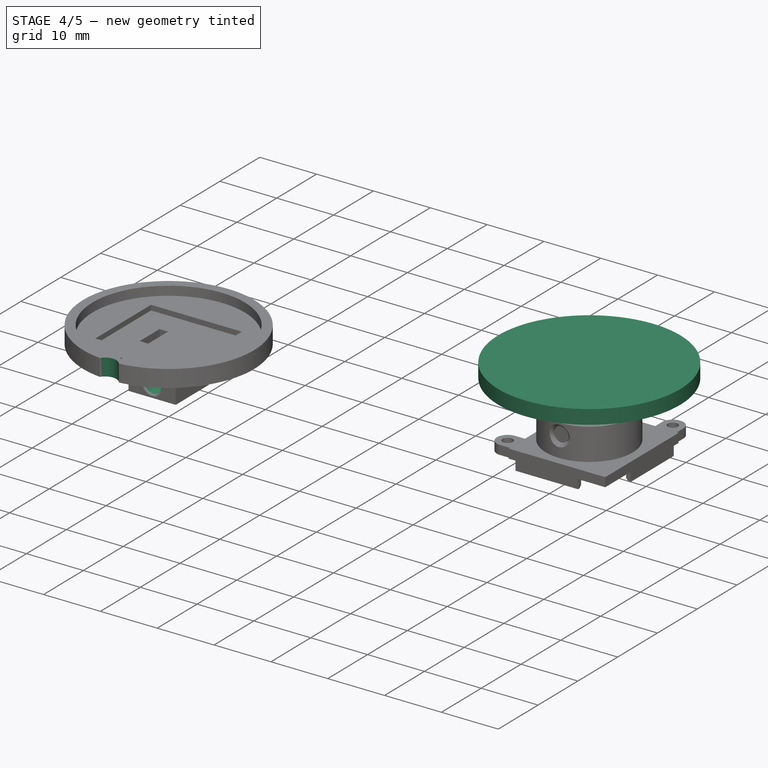
[diagram: stage 4 of 5 — iso view after this stage's code; geometry added in this stage tinted green]
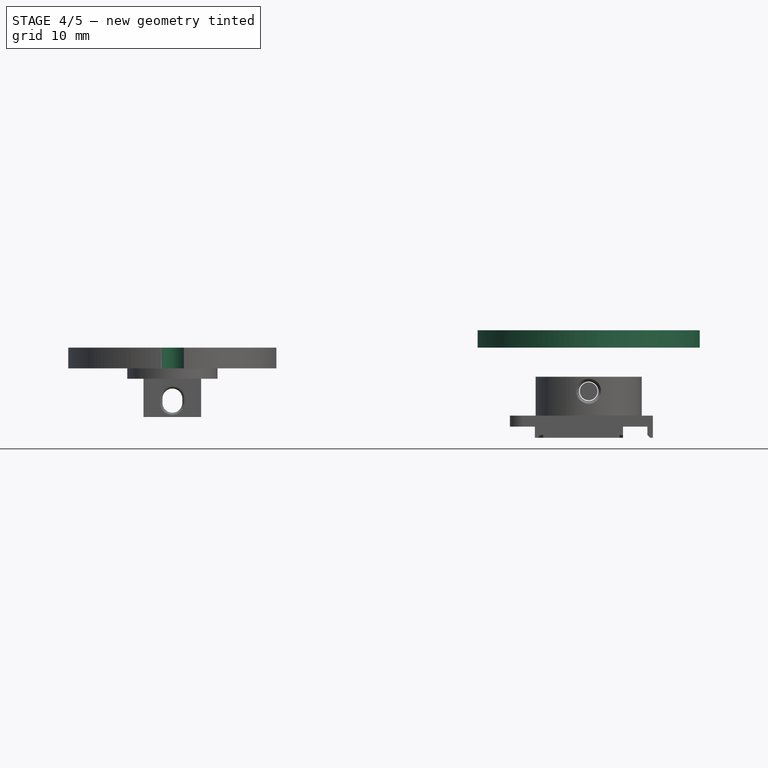
[diagram: stage 4 of 5 — front view after this stage's code; geometry added in this stage tinted green]
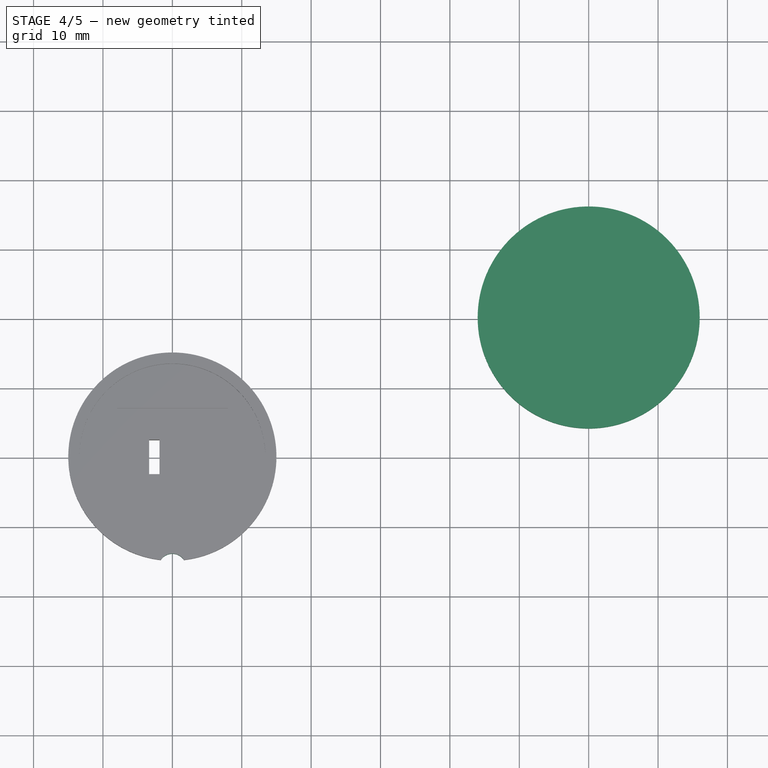
[diagram: stage 4 of 5 — top view after this stage's code; geometry added in this stage tinted green]
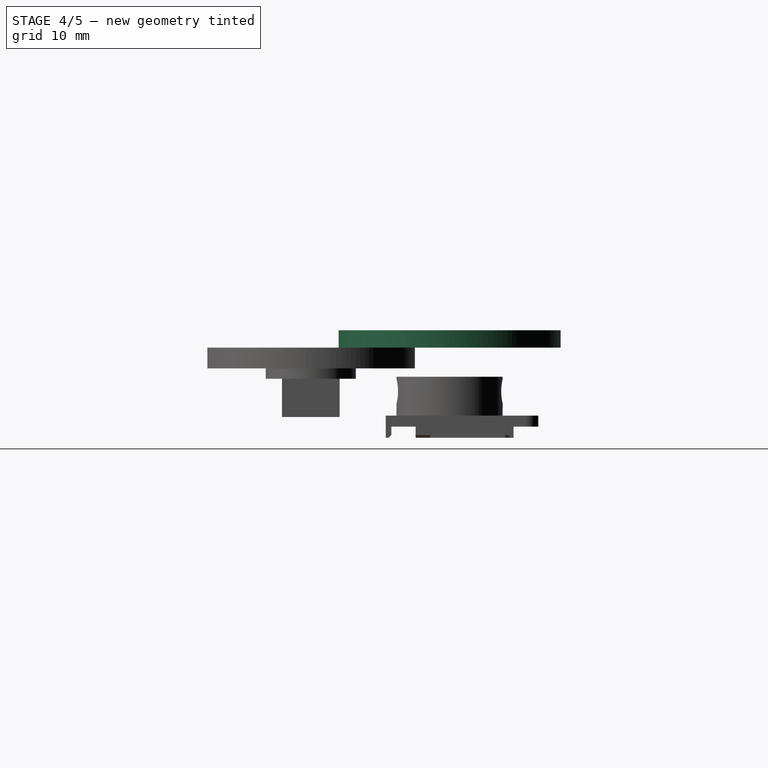
[diagram: stage 4 of 5 — right view after this stage's code; geometry added in this stage tinted green]
FEATURE [PartDesign::CoordinateSystem] Local_CS_79f5
  AttacherType = Attacher::AttachEngine3D
FEATURE [Part::Feature] Pcb_79f5
  Placement = pos=(-160,80,0) rot=(0,0,1;0rad)
  shape: bbox 26.41 x 26.37 x 1.6 mm, 4 faces (baked)
FEATURE [Sketcher::SketchObject] PCB_Sketch_79f5
  sketch-geometry (2):
    g0: ArcOfCircle CenterX=-60 CenterY=-33.2 CenterZ=0 NormalX=0 NormalY=0 NormalZ=1 AngleXU=0 Radius=1.01099 StartAngle=0.0346136 EndAngle=3.10698
    g1: ArcOfCircle CenterX=-60 CenterY=-20 CenterZ=0 NormalX=0 NormalY=0 NormalZ=1 AngleXU=0 Radius=13.2037 StartAngle=4.78899 EndAngle=10.919
  constraints (2):
    c: Coincident(g0,g1)
    c: Coincident(g0,g1)
FEATURE [App::Part] Board_Geoms_79f5
  Group = -> [Local_CS_79f5,Pcb_79f5,PCB_Sketch_79f5]
  Origin = -> Origin
FEATURE [Part::Feature] Shape  label="C4_R_0402_1005Metric_5F2B230A"
  Placement = pos=(-56,-22.8,0) rot=(0,0,1;3.14159rad)
  shape: bbox 1 x 0.5 x 0.35 mm, 26 faces (baked)
FEATURE [Part::Feature] Shape028  label="C1_R_0402_1005Metric_5F2B218A"
  Placement = pos=(-60,-20.35,0) rot=(0,0,1;3.14159rad)
  shape: bbox 1 x 0.5 x 0.35 mm, 26 faces (baked)
FEATURE [Part::Feature] Shape029  label="R1_R_0402_1005Metric_5F2B21EA"
  Placement = pos=(-57.7,-24,0) rot=(0,0,1;3.14159rad)
  shape: bbox 1 x 0.5 x 0.35 mm, 26 faces (baked)
FEATURE [Part::Feature] Shape030  label="R2_R_0402_1005Metric_5F2B22AA"
  Placement = pos=(-57.7,-22.8,0) rot=(0,0,1;3.14159rad)
  shape: bbox 1 x 0.5 x 0.35 mm, 26 faces (baked)
FEATURE [Part::Feature] Shape031  label="C5_R_0402_1005Metric_5F2B21BA"
  Placement = pos=(-56,-24,0) rot=(0,0,1;3.14159rad)
  shape: bbox 1 x 0.5 x 0.35 mm, 26 faces (baked)
FEATURE [Part::Feature] Shape032  label="C3_R_0402_1005Metric_5F2B237F"
  Placement = pos=(-54.6,-24.2,0) rot=(0,0,1;1.5708rad)
  shape: bbox 0.5 x 1 x 0.35 mm, 26 faces (baked)
FEATURE [Part::Feature] Shape033  label="C2_R_0402_1005Metric_5F2B22DA"
  Placement = pos=(-54.3,-22.8,0) rot=(0,0,1;0rad)
  shape: bbox 1 x 0.5 x 0.35 mm, 26 faces (baked)
FEATURE [Part::Feature] Shape034  label="U1_Cube_5F2B223A"
  Placement = pos=(-54.1957,-20.8506,0) rot=(0,0,1;1.5708rad)
  shape: bbox 4 x 4 x 0.55 mm, 6 faces (baked)
FEATURE [Part::Feature] Shape035  label="J1_5034800600_5F3C2C34"
  Placement = pos=(-63.425,-20,0) rot=(0.57735,0.57735,0.57735;2.0944rad)
  shape: bbox 3.6 x 4.7 x 1.896 mm, 337 faces (baked)
FEATURE [App::Part] Top_79f5
  Group = -> [Shape,Shape028,Shape029,Shape030,Shape031,Shape032,Shape033,Shape034,Shape035]
  Origin = -> Origin019
FEATURE [App::Part] Step_Models_79f5
  Group = -> [Top_79f5]
  Origin = -> Origin018
FEATURE [App::Part] Board_79f5  label="Freude_Touchpad"
  Group = -> [Board_Geoms_79f5,Step_Models_79f5]
  Origin = -> Origin017
  Placement = pos=(-60,20,0) rot=(0,1,0;3.14159rad)
FEATURE [Sketcher::SketchObject] Sketch023
  MapMode = 5
  Support = -> [XY_Plane020]
  sketch-geometry (5):
    g0: GeomPoint X=0 Y=0 Z=0
    g1: Circle [constr] CenterX=0 CenterY=0 CenterZ=0 NormalX=0 NormalY=0 NormalZ=1 AngleXU=0 Radius=15
    g2: Circle CenterX=0 CenterY=0 CenterZ=0 NormalX=0 NormalY=0 NormalZ=1 AngleXU=0 Radius=16
    g3: LineSegment [constr] StartX=0 StartY=0 StartZ=0 EndX=16 EndY=0 EndZ=0
    g4: LineSegment [constr] StartX=15 StartY=0 StartZ=0 EndX=16 EndY=0 EndZ=0
  constraints (12):
    c: DistanceX(g0) = 0
    c: DistanceY(g0) = 0
    c: Coincident(g1,g0)
    c: Radius(g1) = 15
    c: Coincident(g2,g0)
    c: Coincident(g3,g0)
    c: PointOnObject(g3,g2)
    c: Horizontal(g3)
    c: PointOnObject(g4,g2)
    c: PointOnObject(g4,g1)
    c: Tangent(g4,g3)
    c: DistanceX(g4,g3) = 1
FEATURE [PartDesign::Pad] Pad006  label="BodyExtrude"
  Length = 2.5
  Length2 = 100
  Profile = -> Sketch023
  Type = 0
FEATURE [Sketcher::SketchObject] Sketch024
  MapMode = 5
  Placement = pos=(0,0,0) rot=(1,0,0;3.14159rad)
  Support = -> [Pad006]
  sketch-geometry (7):
    g0: Circle [constr] CenterX=0 CenterY=0 CenterZ=0 NormalX=0 NormalY=0 NormalZ=1 AngleXU=0 Radius=15
    g1: LineSegment [constr] StartX=0 StartY=0 StartZ=0 EndX=15 EndY=0 EndZ=0
    g2: Circle [constr] CenterX=0 CenterY=0 CenterZ=0 NormalX=0 NormalY=0 NormalZ=1 AngleXU=0 Radius=15.2
    g3: LineSegment [constr] StartX=15 StartY=0 StartZ=0 EndX=15.2 EndY=0 EndZ=0
    g4: ArcOfCircle CenterX=0 CenterY=16 CenterZ=0 NormalX=0 NormalY=0 NormalZ=1 AngleXU=0 Radius=1.9 StartAngle=3.63077 EndAngle=5.79401
    g5: LineSegment [constr] StartX=0 StartY=30 StartZ=0 EndX=0 EndY=-30 EndZ=0
    g6: ArcOfCircle CenterX=0 CenterY=0 CenterZ=0 NormalX=0 NormalY=0 NormalZ=1 AngleXU=0 Radius=15.2 StartAngle=1.68136 EndAngle=7.74342
  constraints (21):
    c: Coincident(g1,g-1)
    c: Horizontal(g1)
    c: Distance(g5) = 60
    c: PointOnObject(g4,g2)
    c: Coincident(g6,g4)
    c: PointOnObject(g4,g5)
    c: Vertical(g5)
    c: DistanceX(g5) = 0
    c: DistanceY(g5) = 30
    c: DistanceY(g6,g4) = 16
    c: Coincident(g4,g6)
    c: PointOnObject(g3,g2)
    c: Horizontal(g3)
    c: DistanceX(g3,g3) = 0.2
    c: Coincident(g6,g-1)
    c: Coincident(g2,g6)
    c: Coincident(g3,g1)
    c: PointOnObject(g1,g0)
    c: Coincident(g0,g6)
    c: Radius(g0) = 15
    c: Radius(g4) = 1.9
FEATURE [PartDesign::Pocket] Pocket012  label="MatingPocket"
  BaseFeature = -> Pad006
  Length = 1.6
  Length2 = 100
  Profile = -> Sketch024
  Type = 0
FEATURE [Sketcher::SketchObject] Sketch025
  MapMode = 5
  Support = -> [XY_Plane016]
  sketch-geometry (6):
    g0: LineSegment [constr] StartX=-60 StartY=10 StartZ=0 EndX=-60 EndY=-42 EndZ=0
    g1: ArcOfCircle CenterX=-60 CenterY=-36 CenterZ=0 NormalX=0 NormalY=0 NormalZ=1 AngleXU=0 Radius=2 StartAngle=0.578627 EndAngle=2.56297
    g2: LineSegment [constr] StartX=-96 StartY=-20 StartZ=0 EndX=-26 EndY=-20 EndZ=0
    g3: GeomPoint X=-60 Y=-20 Z=0
    g4: Circle [constr] CenterX=-60 CenterY=-20 CenterZ=0 NormalX=0 NormalY=0 NormalZ=1 AngleXU=0 Radius=15
    g5: ArcOfCircle CenterX=-60 CenterY=-20 CenterZ=0 NormalX=0 NormalY=0 NormalZ=1 AngleXU=0 Radius=15 StartAngle=4.60053 EndAngle=4.82425
  constraints (19):
    c: DistanceX(g0) = -60
    c: DistanceY(g0) = 10
    c: Vertical(g0)
    c: DistanceY(g0,g0) = 52
    c: DistanceX(g2) = -26
    c: DistanceY(g2) = -20
    c: Horizontal(g2)
    c: DistanceX(g2,g2) = 70
    c: DistanceX(g3) = -60
    c: DistanceY(g3) = -20
    c: Coincident(g4,g3)
    c: Radius(g4) = 15
    c: PointOnObject(g1,g0)
    c: PointOnObject(g1,g4)
    c: DistanceY(g1,g3) = 16
    c: Radius(g1) = 2
    c: Coincident(g5,g3)
    c: Coincident(g5,g1)
    c: Coincident(g5,g1)
FEATURE [PartDesign::Pocket] Pocket013
  BaseFeature = -> Pocket006
  Length = 5
  Length2 = 100
  Profile = -> Sketch025
  Type = 1
FEATURE [PartDesign::Body] Body002  label="Cap_Housing"
  Group = -> [Sketch023,Pad006,Sketch024,Pocket012,Sketch026,Pocket014,PolarPattern003,Sketch027,Revolution]
  Origin = -> Origin020
  Tip = -> Revolution
FEATURE [Sketcher::SketchObject] Sketch028
  MapMode = 5
  Placement = pos=(0,0,0) rot=(1,0,0;1.5708rad)
  Support = -> [XZ_Plane016]
  sketch-geometry (14):
    g0: Circle [constr] CenterX=-60 CenterY=-7.9 CenterZ=0 NormalX=0 NormalY=0 NormalZ=1 AngleXU=0 Radius=1.29
    g1: LineSegment [constr] StartX=-60 StartY=-9.39 StartZ=0 EndX=-60 EndY=-7.35 EndZ=0
    g2: LineSegment StartX=-58.56 StartY=-7.35 StartZ=0 EndX=-58.56 EndY=-7.95 EndZ=0
    g3: LineSegment StartX=-61.44 StartY=-7.35 StartZ=0 EndX=-61.44 EndY=-7.95 EndZ=0
    g4: ArcOfCircle CenterX=-60 CenterY=-7.35 CenterZ=0 NormalX=0 NormalY=0 NormalZ=1 AngleXU=0 Radius=1.44 StartAngle=-9e-16 EndAngle=3.14159
    g5: LineSegment [constr] StartX=-67 StartY=-7.9 StartZ=0 EndX=-53 EndY=-7.9 EndZ=0
    g6: ArcOfCircle CenterX=-60 CenterY=-7.95 CenterZ=0 NormalX=0 NormalY=0 NormalZ=1 AngleXU=0 Radius=1.44 StartAngle=3.14159 EndAngle=6.28319
    g7: LineSegment [constr] StartX=-64.15 StartY=-10 StartZ=0 EndX=-55.85 EndY=-10 EndZ=0
    g8: LineSegment [constr] StartX=-58.71 StartY=-7.9 StartZ=0 EndX=-58.56 EndY=-7.9 EndZ=0
    g9: LineSegment [constr] StartX=-61.44 StartY=-7.35 StartZ=0 EndX=-58.56 EndY=-7.35 EndZ=0
    g10: LineSegment [constr] StartX=-61.44 StartY=-7.95 StartZ=0 EndX=-58.56 EndY=-7.95 EndZ=0
    g11: LineSegment [constr] StartX=-60 StartY=-6.61 StartZ=0 EndX=-60 EndY=-5.91 EndZ=0
    g12: LineSegment [constr] StartX=-60 StartY=-5.91 StartZ=0 EndX=-60 EndY=-7.35 EndZ=0
    g13: GeomPoint X=-60 Y=-9.19 Z=0
  constraints (41):
    c: Radius(g0) = 1.29
    c: DistanceX(g0) = -60
    c: Vertical(g1)
    c: Vertical(g2)
    c: Symmetric(g2,g3,g1)
    c: Coincident(g3,g4)
    c: Coincident(g4,g2)
    c: Horizontal(g5)
    c: PointOnObject(g0,g5)
    c: DistanceX(g0,g5) = 7
    c: DistanceX(g5,g5) = 14
    c: Coincident(g6,g2)
    c: Coincident(g3,g6)
    c: DistanceX(g7) = -55.85
    c: DistanceY(g7) = -10
    c: Horizontal(g7)
    c: DistanceX(g7,g7) = 8.3
    c: DistanceY(g7,g0) = 2.1
    c: Coincident(g4,g1)
    c: PointOnObject(g0,g1)
    c: Equal(g2,g3)
    c: PointOnObject(g8,g2)
    c: Tangent(g8,g5)
    c: DistanceX(g8,g8) = 0.15
    c: PointOnObject(g8,g0)
    c: Coincident(g9,g2)
    c: Coincident(g9,g3)
    c: PointOnObject(g1,g9)
    c: Coincident(g10,g2)
    c: PointOnObject(g6,g10)
    c: Coincident(g10,g3)
    c: Vertical(g11)
    c: PointOnObject(g11,g0)
    c: PointOnObject(g11,g4)
    c: Coincident(g12,g1)
    c: DistanceY(g11,g11) = 0.7
    c: PointOnObject(g1,g6)
    c: PointOnObject(g13,g0)
    c: PointOnObject(g13,g1)
    c: DistanceY(g1,g13) = 0.2
    c: Tangent(g11,g12) = 1.5708
FEATURE [PartDesign::Pocket] Pocket015
  BaseFeature = -> Pocket013
  Length = 5
  Length2 = 100
  Profile = -> Sketch028
  Reversed = true
  Type = 1
FEATURE [PartDesign::Fillet] Fillet
  Base = -> Pocket015 [Edge58]
  BaseFeature = -> Pocket015
  Radius = 0.4
FEATURE [PartDesign::Fillet] Fillet002
  Base = -> Fillet [Edge33]
  BaseFeature = -> Fillet
  Radius = 0.4
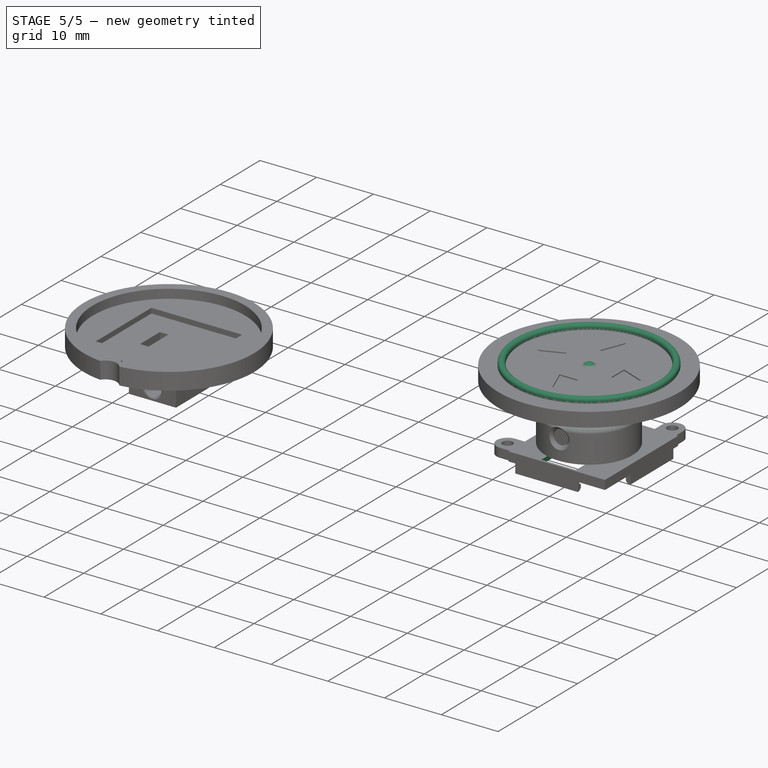
[diagram: stage 5 of 5 — iso view after this stage's code; geometry added in this stage tinted green]
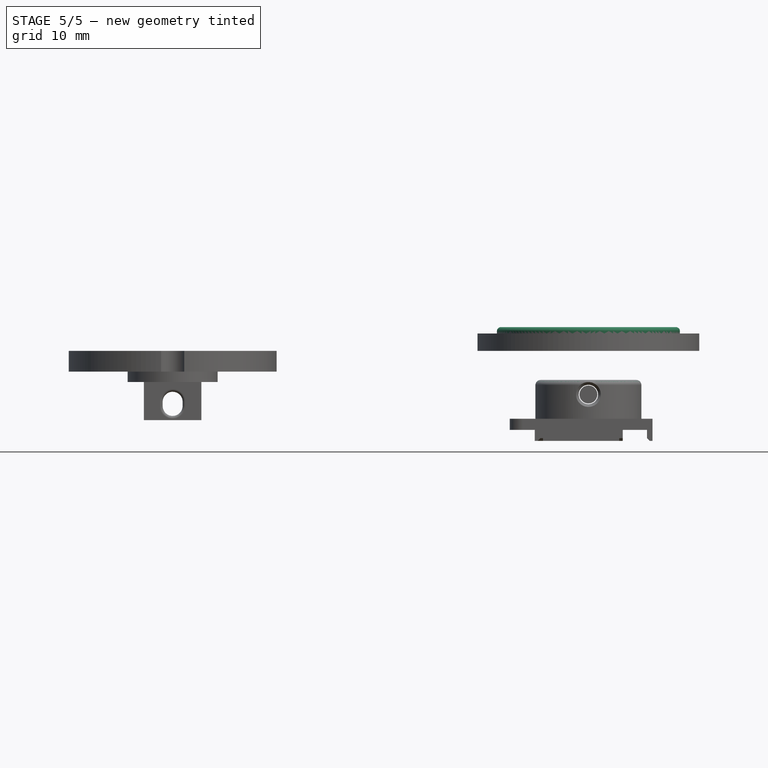
[diagram: stage 5 of 5 — front view after this stage's code; geometry added in this stage tinted green]
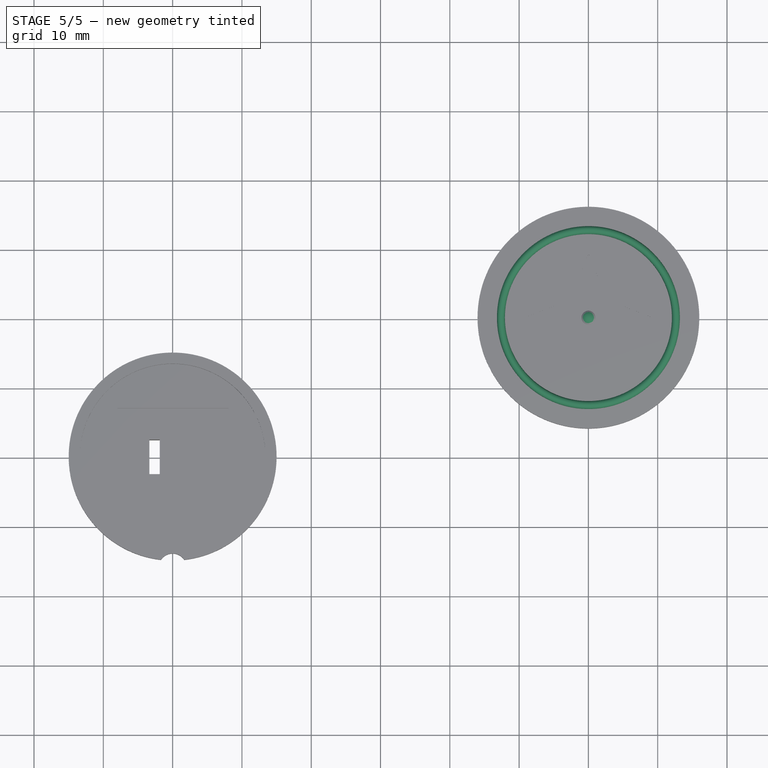
[diagram: stage 5 of 5 — top view after this stage's code; geometry added in this stage tinted green]
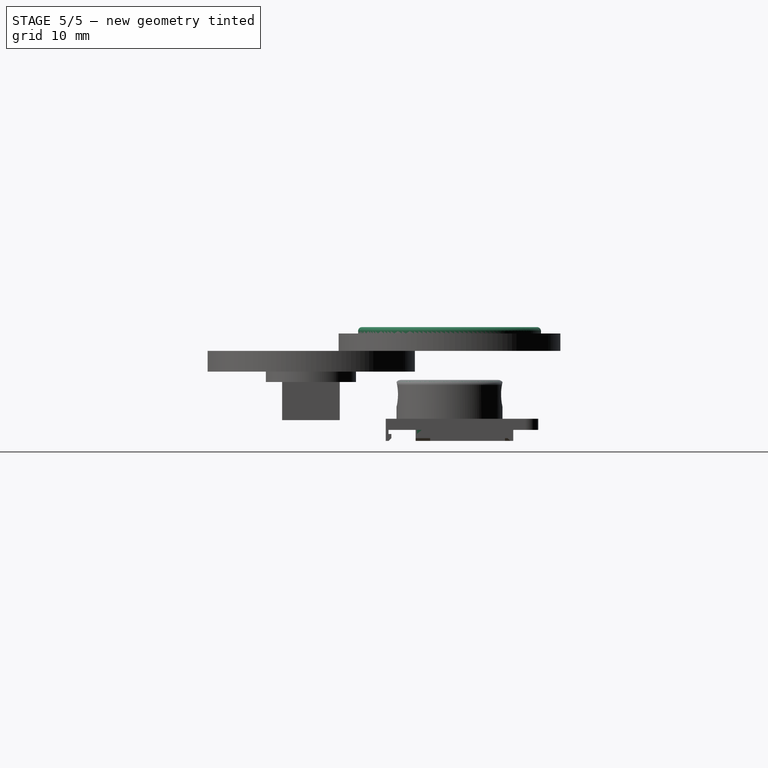
[diagram: stage 5 of 5 — right view after this stage's code; geometry added in this stage tinted green]
FEATURE [Sketcher::SketchObject] Sketch026
  MapMode = 5
  Placement = pos=(0,0,2.5) rot=(0,0,1;0rad)
  sketch-geometry (7):
    g0: GeomPoint X=0 Y=0 Z=0
    g1: Circle [constr] CenterX=0 CenterY=0 CenterZ=0 NormalX=0 NormalY=0 NormalZ=1 AngleXU=0 Radius=2
    g2: LineSegment [constr] StartX=0 StartY=18 StartZ=0 EndX=0 EndY=-18 EndZ=0
    g3: LineSegment StartX=0 StartY=5 StartZ=0 EndX=-1.66 EndY=5 EndZ=0
    g4: LineSegment StartX=-1.66 StartY=5 StartZ=0 EndX=0 EndY=9.25 EndZ=0
    g5: LineSegment StartX=1.66 StartY=5 StartZ=0 EndX=0 EndY=9.25 EndZ=0
    g6: LineSegment StartX=0 StartY=5 StartZ=0 EndX=1.66 EndY=5 EndZ=0
  constraints (19):
    c: DistanceX(g0) = 0
    c: DistanceY(g0) = 0
    c: Coincident(g1,g0)
    c: Radius(g1) = 2
    c: DistanceX(g2) = 0
    c: DistanceY(g2) = 18
    c: Vertical(g2)
    c: DistanceY(g2,g2) = 36
    c: PointOnObject(g3,g2)
    c: Horizontal(g3)
    c: Coincident(g3,g4)
    c: PointOnObject(g4,g2)
    c: DistanceX(g3,g3) = 1.66
    c: DistanceY(g3,g4) = 4.25
    c: DistanceY(g0,g3) = 5
    c: Coincident(g6,g5)
    c: Coincident(g6,g3)
    c: Symmetric(g5,g3,g2)
    c: Coincident(g5,g4)
FEATURE [PartDesign::Pocket] Pocket014  label="TouchGuideReliefNorth"
  BaseFeature = -> Pocket012
  Length = 0.2
  Length2 = 100
  Profile = -> Sketch026
  Type = 0
FEATURE [PartDesign::PolarPattern] PolarPattern003  label="TouchGuideReliefESW"
  Angle = 360
  Axis = -> Sketch026 [N_Axis]
  BaseFeature = -> Pocket014
  Occurrences = 4
  Originals = -> [Pocket014]
FEATURE [Sketcher::SketchObject] Sketch027
  MapMode = 5
  Placement = pos=(0,0,0) rot=(1,0,0;1.5708rad)
  Support = -> [XZ_Plane020]
  sketch-geometry (10):
    g0: LineSegment [constr] StartX=-20 StartY=2.5 StartZ=0 EndX=20 EndY=2.5 EndZ=0
    g1: LineSegment [constr] StartX=0 StartY=20 StartZ=0 EndX=0 EndY=-2 EndZ=0
    g2: LineSegment StartX=-1 StartY=2.5 StartZ=0 EndX=0 EndY=2.5 EndZ=0
    g3: ArcOfCircle CenterX=0 CenterY=1.75 CenterZ=0 NormalX=0 NormalY=0 NormalZ=1 AngleXU=0 Radius=1.25 StartAngle=1.5708 EndAngle=2.49809
    g4: LineSegment StartX=0 StartY=3 StartZ=0 EndX=0 EndY=2.5 EndZ=0
    g5: ArcOfCircle CenterX=-12.625 CenterY=2.85 CenterZ=0 NormalX=0 NormalY=0 NormalZ=1 AngleXU=0 Radius=0.575 StartAngle=-3.6e-15 EndAngle=3.14159
    g6: LineSegment [constr] StartX=-13.2 StartY=2.85 StartZ=0 EndX=-12.05 EndY=2.85 EndZ=0
    g7: LineSegment StartX=-13.2 StartY=2.85 StartZ=0 EndX=-13.2 EndY=2.5 EndZ=0
    g8: LineSegment StartX=-12.05 StartY=2.85 StartZ=0 EndX=-12.05 EndY=2.5 EndZ=0
    g9: LineSegment StartX=-13.2 StartY=2.5 StartZ=0 EndX=-12.05 EndY=2.5 EndZ=0
  constraints (33):
    c: DistanceX(g0) = 20
    c: DistanceY(g0) = 2.5
    c: Horizontal(g0)
    c: DistanceX(g0,g0) = 40
    c: DistanceX(g1) = 0
    c: DistanceY(g1) = 20
    c: Vertical(g1)
    c: Distance(g1) = 22
    c: DistanceX(g2) = 0
    c: DistanceY(g2) = 2.5
    c: Horizontal(g2)
    c: PointOnObject(g3,g1)
    c: Coincident(g3,g2)
    c: PointOnObject(g3,g1)
    c: Radius(g3) = 1.25
    c: Coincident(g4,g3)
    c: Coincident(g4,g2)
    c: DistanceX(g2,g2) = 1
    c: Coincident(g5,g6)
    c: Coincident(g6,g5)
    c: PointOnObject(g5,g6)
    c: PointOnObject(g7,g0)
    c: Vertical(g7)
    c: PointOnObject(g8,g0)
    c: Vertical(g8)
    c: Equal(g8,g7)
    c: Coincident(g8,g5)
    c: Coincident(g5,g7)
    c: Coincident(g9,g8)
    c: Coincident(g9,g7)
    c: DistanceX(g9,g9) = 1.15
    c: DistanceY(g8,g8) = 0.35
    c: DistanceX(g7,g2) = 13.2
FEATURE [PartDesign::Revolution] Revolution  label="CenterAndEdgeGuide"
  Angle = 360
  Axis = (0,2e-16,1)
  Base = (0,0,0)
  BaseFeature = -> PolarPattern003
  Profile = -> Sketch027
  ReferenceAxis = -> Sketch027 [V_Axis]
FEATURE [PartDesign::Pocket] Pocket002  label="ConnectorClearanceCoarse"
  BaseFeature = -> Chamfer005
  Length = 0
  Length2 = 100
  Offset = -0.8
  Profile = -> Sketch010
  Type = 3
  UpToFace = -> Chamfer [Face17]
FEATURE [PartDesign::Pocket] Pocket003  label="ConnectorClearanceFine"
  BaseFeature = -> Pocket002
  Length = 0
  Length2 = 100
  Profile = -> CopySketch011
  Type = 3
  UpToFace = -> Pocket002 [Face7]
FEATURE [PartDesign::Fillet] Fillet001  label="FilletStem"
  Base = -> Pocket003 [Edge9]
  BaseFeature = -> Pocket003
  Radius = 0.75
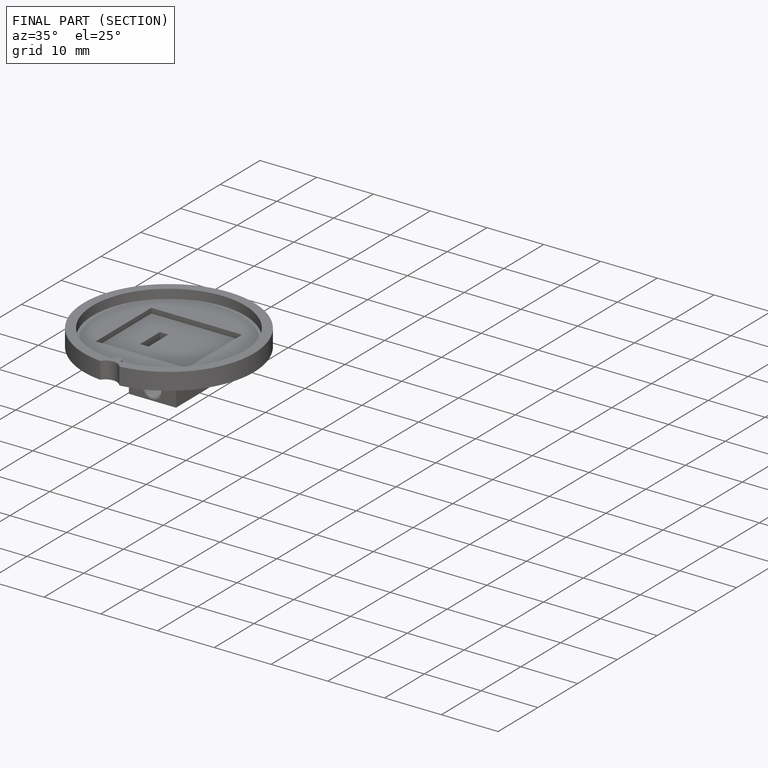
[diagram: finished part — half-section view (interior)]
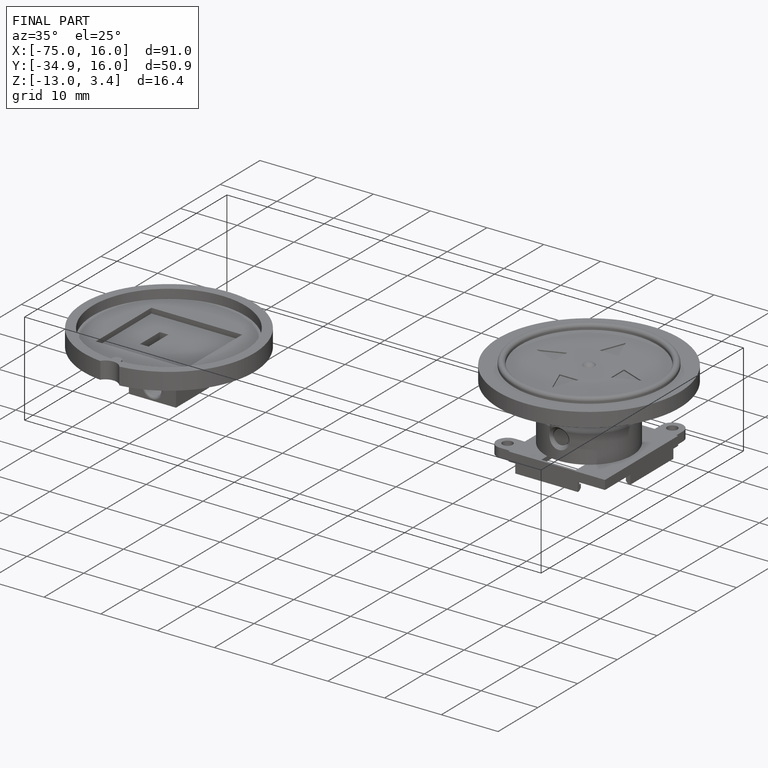
[diagram: finished part — iso view with bounding-box wireframe]
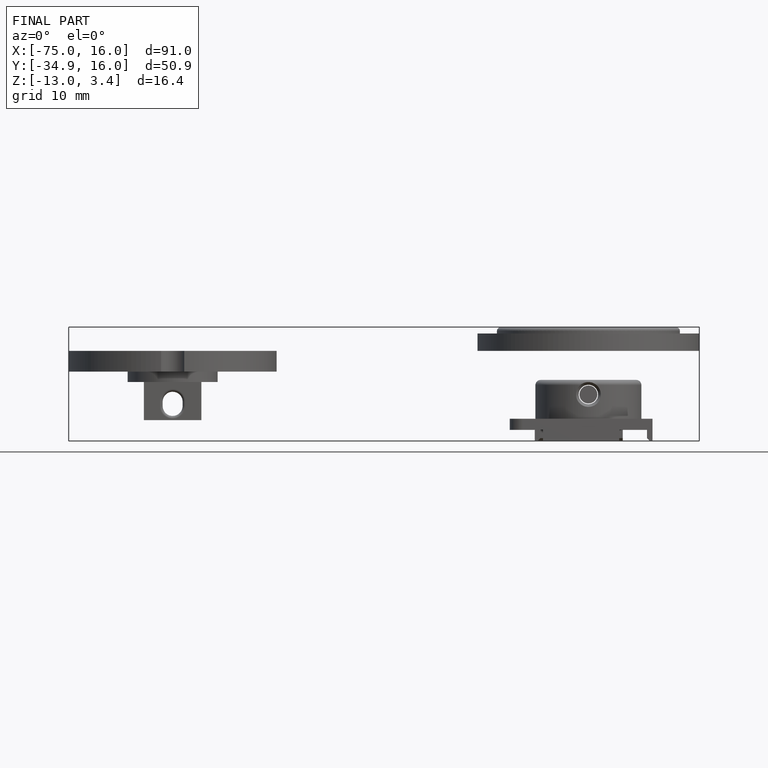
[diagram: finished part — front view with bounding-box wireframe]
